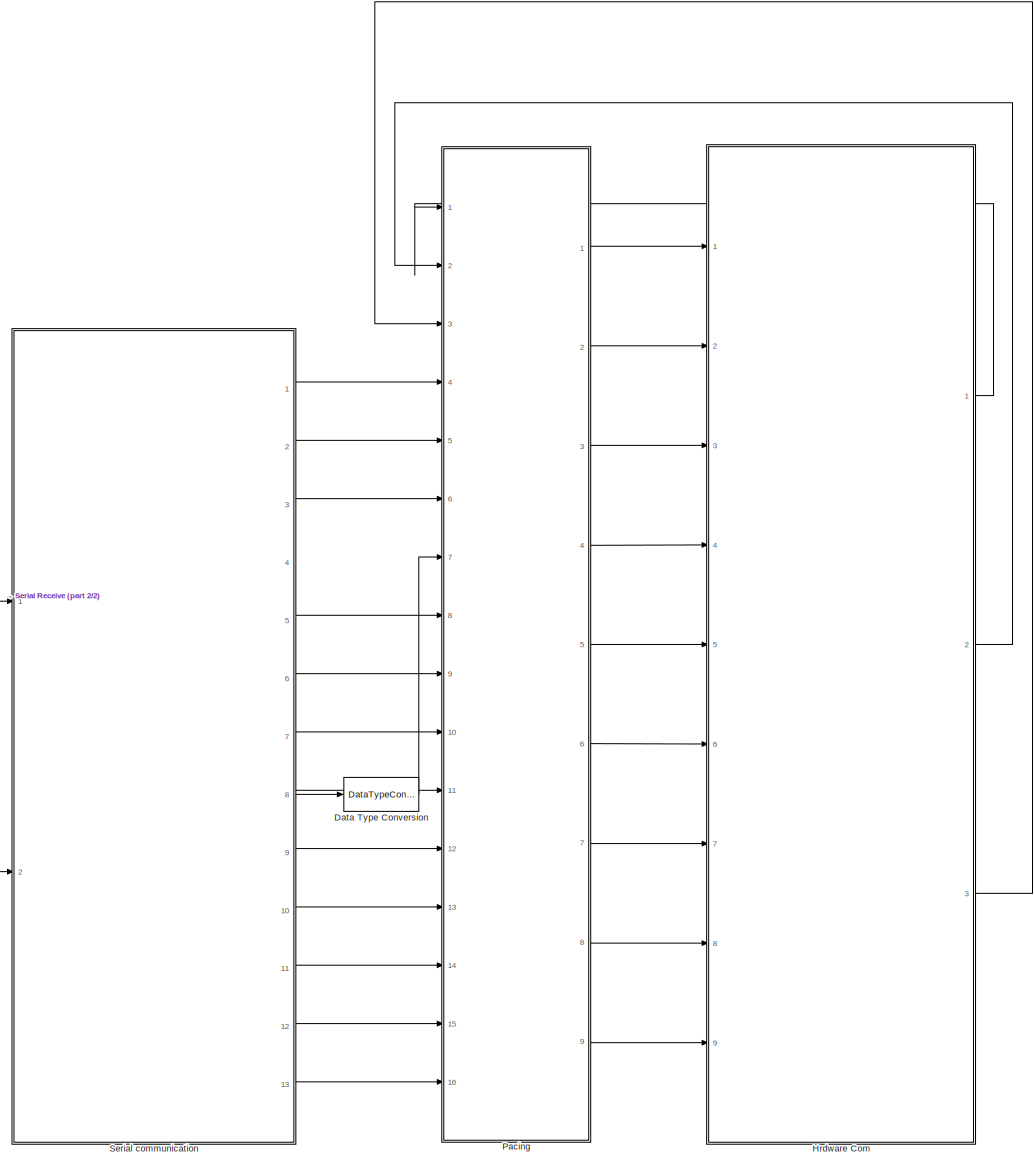
[diagram: root canvas - part 1/2, most of the canvas]
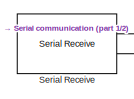
[diagram: root canvas - part 2/2, middle left region]
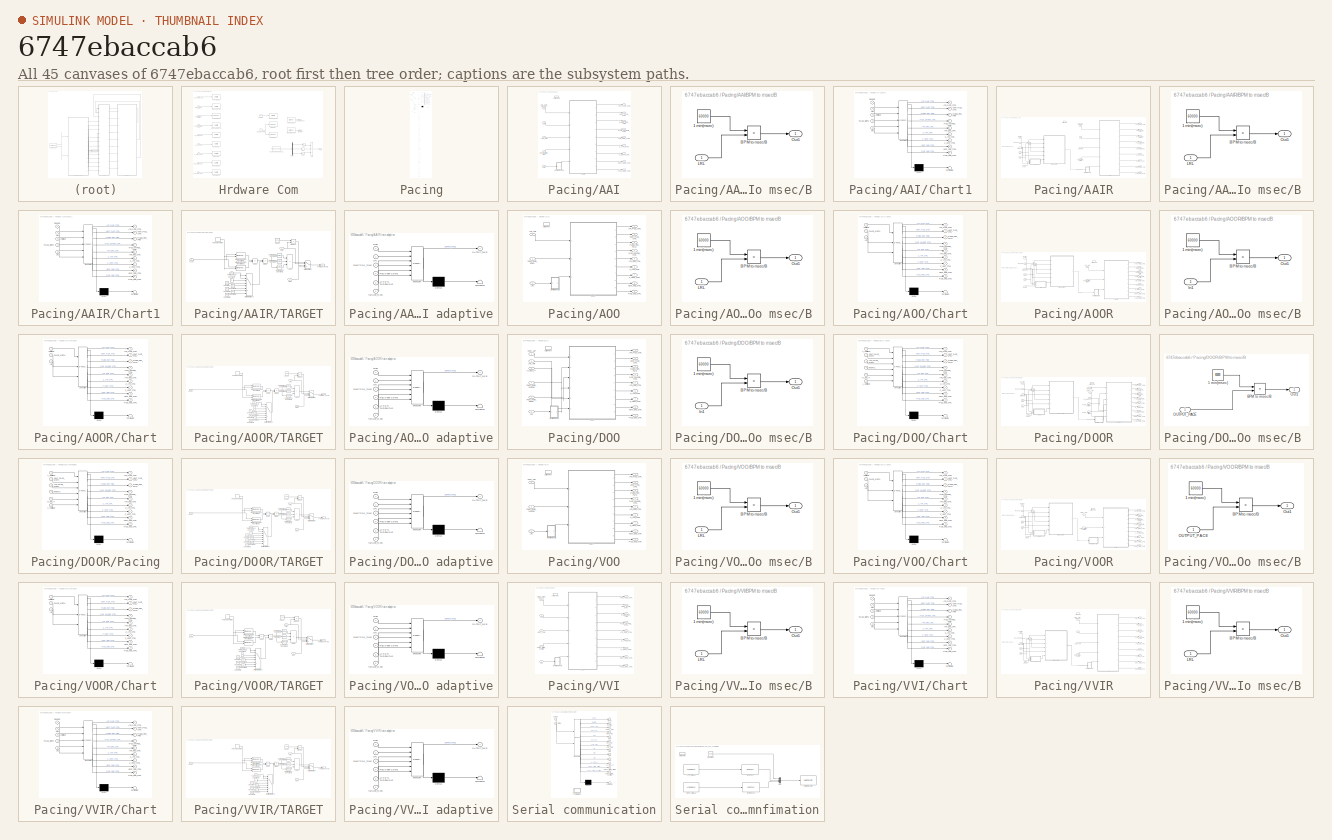
[diagram: thumbnail index - all 45 canvases of the model, root first then tree order]
MODEL slx_6747ebaccab6
KIND model
CONFIG AbsTol = auto
CONFIG EnableMultiTasking = on
CONFIG FixedStep = 0.001
CONFIG MaxStep = auto
CONFIG MinStep = auto
CONFIG RelTol = 1e-3
CONFIG SampleTimeConstraint = Unconstrained
CONFIG Solver = FixedStepAuto
CONFIG SolverName = FixedStepAuto
CONFIG StartTime = 0.0
CONFIG StopTime = inf
WORKSPACE source: mxarray member
WORKSPACE parameter: Simulink.Parameter (value not decoded)
BLOCK [DataTypeConversion] Data Type Conversion
  OutDataTypeStr = double
  RndMeth = Floor
  SaturateOnIntegerOverflow = off
BLOCK [SubSystem] Hrdware Com
  Ports = [9, 3]
  RequestExecContextInheritance = off
BLOCK [Reference] Hrdware Com/ATR CMP DETECT  REF=frdmk64flib/Digital Read
  Ports = [0, 1]
  SourceBlock = frdmk64flib/Digital Read
  SourceProductBaseCode = EC_FRDM_K64F
  SourceType = freedomk64f.DigitalRead
BLOCK [Outport] Hrdware Com/ATR CMP DETECT 
  OutDataTypeStr = boolean
  PortDimensions = 1
BLOCK [Reference] Hrdware Com/ATR GND CTRL   REF=frdmk64flib/Digital Write
  Ports = [1]
  SourceBlock = frdmk64flib/Digital Write
  SourceProductBaseCode = EC_FRDM_K64F
  SourceType = freedomk64f.DigitalWrite
BLOCK [Reference] Hrdware Com/ATR PACE CTRL  REF=frdmk64flib/Digital Write
  Ports = [1]
  SourceBlock = frdmk64flib/Digital Write
  SourceProductBaseCode = EC_FRDM_K64F
  SourceType = freedomk64f.DigitalWrite
BLOCK [Inport] Hrdware Com/ATR_GND_CTRL
  Port = 5
BLOCK [Inport] Hrdware Com/ATR_PACE_CTRL
BLOCK [Abs] Hrdware Com/Abs
  SaturateOnIntegerOverflow = off
BLOCK [Abs] Hrdware Com/Abs1
  SaturateOnIntegerOverflow = off
BLOCK [Abs] Hrdware Com/Abs2
  SaturateOnIntegerOverflow = off
BLOCK [Outport] Hrdware Com/Accel
  OutDataTypeStr = double
  Port = 3
  PortDimensions = 1
BLOCK [Sum] Hrdware Com/Add
  IconShape = rectangular
  Inputs = +++
  Ports = [3, 1]
BLOCK [Constant] Hrdware Com/CMP_REF_PWM
  OutDataTypeStr = double
  Value = 80
BLOCK [Constant] Hrdware Com/Constant
  OutDataTypeStr = boolean
  Value = true
BLOCK [Demux] Hrdware Com/Demux
  Outputs = 3
  Ports = [1, 3]
BLOCK [Reference] Hrdware Com/FRONTEND CTRL  REF=frdmk64flib/Digital Write
  Ports = [1]
  SourceBlock = frdmk64flib/Digital Write
  SourceProductBaseCode = EC_FRDM_K64F
  SourceType = freedomk64f.DigitalWrite
BLOCK [Reference] Hrdware Com/FXOS8700 6-Axes Sensor1  REF=frdmk64flib/FXOS8700 6-Axes Sensor
  Ports = [0, 1]
  SourceBlock = frdmk64flib/FXOS8700 6-Axes Sensor
  SourceProductBaseCode = EC_FRDM_K64F
  SourceType = freedomk64f.fxos8700
BLOCK [Reference] Hrdware Com/PACE CHARGE CTRL  REF=frdmk64flib/Digital Write
  Ports = [1]
  SourceBlock = frdmk64flib/Digital Write
  SourceProductBaseCode = EC_FRDM_K64F
  SourceType = freedomk64f.DigitalWrite
BLOCK [Reference] Hrdware Com/PACE GND CTRL  REF=frdmk64flib/Digital Write
  Ports = [1]
  SourceBlock = frdmk64flib/Digital Write
  SourceProductBaseCode = EC_FRDM_K64F
  SourceType = freedomk64f.DigitalWrite
BLOCK [Inport] Hrdware Com/PACE_CHARGE_CTRL
  Port = 4
BLOCK [Inport] Hrdware Com/PACE_GND_CTRL
  Port = 9
BLOCK [Reference] Hrdware Com/PACING REF PWM  REF=frdmk64flib/PWM Output
  Ports = [1]
  SourceBlock = frdmk64flib/PWM Output
  SourceProductBaseCode = EC_FRDM_K64F
  SourceType = freedomk64f.PWMOutput
BLOCK [Inport] Hrdware Com/PACING_REF_PWM
  Port = 3
BLOCK [Reference] Hrdware Com/PWM Output  REF=frdmk64flib/PWM Output
  Ports = [1]
  SourceBlock = frdmk64flib/PWM Output
  SourceProductBaseCode = EC_FRDM_K64F
  SourceType = freedomk64f.PWMOutput
BLOCK [Reference] Hrdware Com/PWM Output1  REF=frdmk64flib/PWM Output
  Ports = [1]
  SourceBlock = frdmk64flib/PWM Output
  SourceProductBaseCode = EC_FRDM_K64F
  SourceType = freedomk64f.PWMOutput
BLOCK [Reference] Hrdware Com/VENT CMP DETECT  REF=frdmk64flib/Digital Read
  Ports = [0, 1]
  SourceBlock = frdmk64flib/Digital Read
  SourceProductBaseCode = EC_FRDM_K64F
  SourceType = freedomk64f.DigitalRead
BLOCK [Outport] Hrdware Com/VENT CMP DETECT 
  OutDataTypeStr = boolean
  Port = 2
  PortDimensions = 1
BLOCK [Reference] Hrdware Com/VENT GND CTRL  REF=frdmk64flib/Digital Write
  Ports = [1]
  SourceBlock = frdmk64flib/Digital Write
  SourceProductBaseCode = EC_FRDM_K64F
  SourceType = freedomk64f.DigitalWrite
BLOCK [Reference] Hrdware Com/VENT PACE CTRL  REF=frdmk64flib/Digital Write
  Ports = [1]
  SourceBlock = frdmk64flib/Digital Write
  SourceProductBaseCode = EC_FRDM_K64F
  SourceType = freedomk64f.DigitalWrite
BLOCK [Inport] Hrdware Com/VENT_GND_CTRL
  Port = 8
BLOCK [Inport] Hrdware Com/VENT_PACE_CTRL
  Port = 2
BLOCK [Reference] Hrdware Com/Z ATR CTRL   REF=frdmk64flib/Digital Write
  Ports = [1]
  SourceBlock = frdmk64flib/Digital Write
  SourceProductBaseCode = EC_FRDM_K64F
  SourceType = freedomk64f.DigitalWrite
BLOCK [Reference] Hrdware Com/Z VENT CTRL   REF=frdmk64flib/Digital Write
  Ports = [1]
  SourceBlock = frdmk64flib/Digital Write
  SourceProductBaseCode = EC_FRDM_K64F
  SourceType = freedomk64f.DigitalWrite
BLOCK [Inport] Hrdware Com/Z_ATR_CTRL 
  Port = 6
BLOCK [Inport] Hrdware Com/Z_VENT_CTRL 
  Port = 7
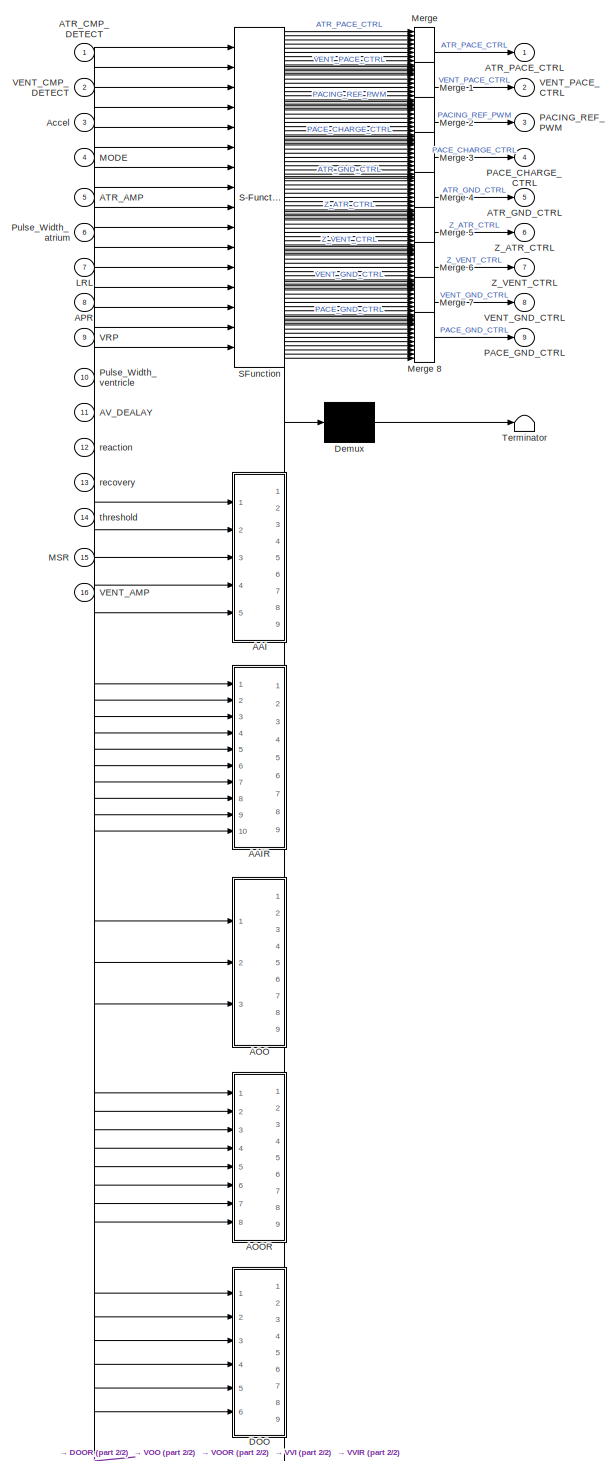
[diagram: Pacing - part 1/2, full width, top band]
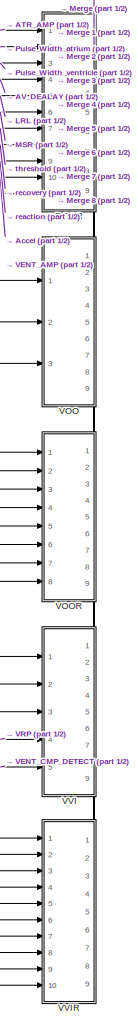
[diagram: Pacing - part 2/2, bottom center region]
BLOCK [SubSystem] Pacing
  ErrorFcn = Stateflow.Translate.translate
  PermitHierarchicalResolution = ExplicitOnly
  PortSchema = {"entries":[{"content":{"sides":[{"content":{"connectorIds":["In1","In2","In3","In4","In5","In6","In8","In15","In9","In16","In7","In10","In11","In12","In13","In14"]},"type":"ConnectorPlacement.EquallySpacedRectSide","uuid":"b899f434-ac53-4776-90ad-1e47a9a70434"},{"content":{"connectorIds":["Out1","Out2","Out3","Out4","Out5","Out6","Out7","Out8","Out9"],"side":"RIGHT"},"type":"ConnectorPlacement.Eq...<+395ch>
  Ports = [16, 9]
  RequestExecContextInheritance = off
  SFBlockType = Chart
  TreatAsAtomicUnit = on
BLOCK [Demux] Pacing/ Demux 
  Outputs = 1
  Ports = [1, 1]
BLOCK [Merge] Pacing/ Merge 
  Inputs = 11
  Ports = [11, 1]
BLOCK [Merge] Pacing/ Merge 1
  Inputs = 11
  Ports = [11, 1]
BLOCK [Merge] Pacing/ Merge 2
  Inputs = 11
  Ports = [11, 1]
BLOCK [Merge] Pacing/ Merge 3
  Inputs = 11
  Ports = [11, 1]
BLOCK [Merge] Pacing/ Merge 4
  Inputs = 11
  Ports = [11, 1]
BLOCK [Merge] Pacing/ Merge 5
  Inputs = 11
  Ports = [11, 1]
BLOCK [Merge] Pacing/ Merge 6
  Inputs = 11
  Ports = [11, 1]
BLOCK [Merge] Pacing/ Merge 7
  Inputs = 11
  Ports = [11, 1]
BLOCK [Merge] Pacing/ Merge 8
  Inputs = 11
  Ports = [11, 1]
BLOCK [S-Function] Pacing/ SFunction 
  EnableBusSupport = on
  FunctionName = sf_sfun
  PortCounts = [16 10]
  Ports = [16, 10]
  SFcnIsStateOwnerBlock = off
  SFunctionDeploymentMode = off
  Tag = Stateflow S-Function 3
BLOCK [Terminator] Pacing/ Terminator 
BLOCK [SubSystem] Pacing/AAI
  Ports = [5, 9, 0, 0, 0, 0, 0, 1]
  PreDeleteFcn = Stateflow.SLINSF.SimulinkMan.removePreDeleteFcn
  RequestExecContextInheritance = off
  UndoDeleteFcn = Stateflow.SLINSF.SimulinkMan.restorePreDeleteFcn
BLOCK [Inport] Pacing/AAI/APR
  Port = 4
BLOCK [Inport] Pacing/AAI/ATR_AMP
BLOCK [Inport] Pacing/AAI/ATR_CMP_DETECT
  Port = 5
BLOCK [Outport] Pacing/AAI/ATR_GND_CTRL
  Port = 5
BLOCK [Outport] Pacing/AAI/ATR_PACE_CTRL
BLOCK [ActionPort] Pacing/AAI/Action Port
  CopyFcn = Stateflow.SLINSF.SimulinkMan.removeBlockPreDeleteFcn
  PreDeleteFcn = Stateflow.SLINSF.SimulinkMan.unsafePredeleteFcn
BLOCK [SubSystem] Pacing/AAI/BPM to msec//B 
  Ports = [1, 1]
  RequestExecContextInheritance = off
BLOCK [Constant] Pacing/AAI/BPM to msec//B /1 min(msec)
  OutDataTypeStr = double
  Value = 60000
BLOCK [Product] Pacing/AAI/BPM to msec//B /BPM to msec//B 
  Inputs = */
  OutDataTypeStr = uint16
  Ports = [2, 1]
  RndMeth = Nearest
BLOCK [Inport] Pacing/AAI/BPM to msec//B /LRL
BLOCK [Outport] Pacing/AAI/BPM to msec//B /Out1
BLOCK [SubSystem] Pacing/AAI/Chart1
  ErrorFcn = Stateflow.Translate.translate
  PermitHierarchicalResolution = ExplicitOnly
  Ports = [5, 9]
  RequestExecContextInheritance = off
  SFBlockType = Chart
  TreatAsAtomicUnit = on
BLOCK [Demux] Pacing/AAI/Chart1/ Demux 
  Outputs = 1
  Ports = [1, 1]
BLOCK [S-Function] Pacing/AAI/Chart1/ SFunction 
  EnableBusSupport = off
  FunctionName = sf_sfun
  PortCounts = [5 10]
  Ports = [5, 10]
  SFcnIsStateOwnerBlock = off
  SFunctionDeploymentMode = off
  Tag = Stateflow S-Function 12
BLOCK [Terminator] Pacing/AAI/Chart1/ Terminator 
BLOCK [Inport] Pacing/AAI/Chart1/ARP
  Port = 2
BLOCK [Outport] Pacing/AAI/Chart1/ATR_GND_CTRL
  Port = 5
BLOCK [Outport] Pacing/AAI/Chart1/ATR_PACE_CTRL
BLOCK [Inport] Pacing/AAI/Chart1/Amplitude
  Port = 3
BLOCK [Inport] Pacing/AAI/Chart1/LRL
  Port = 5
BLOCK [Outport] Pacing/AAI/Chart1/PACE_CHARGE_CTRL
  Port = 4
BLOCK [Outport] Pacing/AAI/Chart1/PACE_GND_CTRL
  Port = 9
BLOCK [Outport] Pacing/AAI/Chart1/PACING_REF_PWM
  Port = 3
BLOCK [Inport] Pacing/AAI/Chart1/PULSE_WIDTH
  Port = 4
BLOCK [Inport] Pacing/AAI/Chart1/SENSED
BLOCK [Outport] Pacing/AAI/Chart1/VENT_GND_CTRL
  Port = 8
BLOCK [Outport] Pacing/AAI/Chart1/VENT_PACE_CTRL
  Port = 2
BLOCK [Outport] Pacing/AAI/Chart1/Z_ATR_CTRL
  Port = 6
BLOCK [Outport] Pacing/AAI/Chart1/Z_VENT_CTRL
  Port = 7
BLOCK [Inport] Pacing/AAI/LRL
  Port = 3
BLOCK [Outport] Pacing/AAI/PACE_CHARGE_CTRL
  Port = 4
BLOCK [Outport] Pacing/AAI/PACE_GND_CTRL
  Port = 9
BLOCK [Outport] Pacing/AAI/PACING_REF_PWM
  Port = 3
BLOCK [Inport] Pacing/AAI/Pulse_Width_atrium
  Port = 2
BLOCK [Outport] Pacing/AAI/VENT_GND_CTRL
  Port = 8
BLOCK [Outport] Pacing/AAI/VENT_PACE_CTRL
  Port = 2
BLOCK [Outport] Pacing/AAI/Z_ATR_CTRL
  Port = 6
BLOCK [Outport] Pacing/AAI/Z_VENT_CTRL
  Port = 7
BLOCK [SubSystem] Pacing/AAIR
  Ports = [10, 9, 0, 0, 0, 0, 0, 1]
  PreDeleteFcn = Stateflow.SLINSF.SimulinkMan.removePreDeleteFcn
  RequestExecContextInheritance = off
  UndoDeleteFcn = Stateflow.SLINSF.SimulinkMan.restorePreDeleteFcn
BLOCK [Inport] Pacing/AAIR/APR
  Port = 3
BLOCK [Inport] Pacing/AAIR/ATR_AMP
BLOCK [Inport] Pacing/AAIR/ATR_CMP_DETECT
  Port = 4
BLOCK [Outport] Pacing/AAIR/ATR_GND_CTRL
  Port = 5
BLOCK [Outport] Pacing/AAIR/ATR_PACE_CTRL
BLOCK [Inport] Pacing/AAIR/Accel
  Port = 10
BLOCK [ActionPort] Pacing/AAIR/Action Port
  CopyFcn = Stateflow.SLINSF.SimulinkMan.removeBlockPreDeleteFcn
  PreDeleteFcn = Stateflow.SLINSF.SimulinkMan.unsafePredeleteFcn
BLOCK [SubSystem] Pacing/AAIR/BPM to msec//B 
  Ports = [1, 1]
  RequestExecContextInheritance = off
BLOCK [Constant] Pacing/AAIR/BPM to msec//B /1 min(msec)
  OutDataTypeStr = double
  Value = 60000
BLOCK [Product] Pacing/AAIR/BPM to msec//B /BPM to msec//B 
  Inputs = */
  OutDataTypeStr = uint16
  Ports = [2, 1]
  RndMeth = Nearest
BLOCK [Inport] Pacing/AAIR/BPM to msec//B /LRL
BLOCK [Outport] Pacing/AAIR/BPM to msec//B /Out1
BLOCK [SubSystem] Pacing/AAIR/Chart1
  ErrorFcn = Stateflow.Translate.translate
  PermitHierarchicalResolution = ExplicitOnly
  Ports = [5, 9]
  RequestExecContextInheritance = off
  SFBlockType = Chart
  TreatAsAtomicUnit = on
BLOCK [Demux] Pacing/AAIR/Chart1/ Demux 
  Outputs = 1
  Ports = [1, 1]
BLOCK [S-Function] Pacing/AAIR/Chart1/ SFunction 
  EnableBusSupport = off
  FunctionName = sf_sfun
  PortCounts = [5 10]
  Ports = [5, 10]
  SFcnIsStateOwnerBlock = off
  SFunctionDeploymentMode = off
  Tag = Stateflow S-Function 9
BLOCK [Terminator] Pacing/AAIR/Chart1/ Terminator 
BLOCK [Inport] Pacing/AAIR/Chart1/ARP
  Port = 2
BLOCK [Outport] Pacing/AAIR/Chart1/ATR_GND_CTRL
  Port = 5
BLOCK [Outport] Pacing/AAIR/Chart1/ATR_PACE_CTRL
BLOCK [Inport] Pacing/AAIR/Chart1/Amplitude
  Port = 3
BLOCK [Inport] Pacing/AAIR/Chart1/LRL
  Port = 5
BLOCK [Outport] Pacing/AAIR/Chart1/PACE_CHARGE_CTRL
  Port = 4
BLOCK [Outport] Pacing/AAIR/Chart1/PACE_GND_CTRL
  Port = 9
BLOCK [Outport] Pacing/AAIR/Chart1/PACING_REF_PWM
  Port = 3
BLOCK [Inport] Pacing/AAIR/Chart1/PULSE_WIDTH
  Port = 4
BLOCK [Inport] Pacing/AAIR/Chart1/SENSED
BLOCK [Outport] Pacing/AAIR/Chart1/VENT_GND_CTRL
  Port = 8
BLOCK [Outport] Pacing/AAIR/Chart1/VENT_PACE_CTRL
  Port = 2
BLOCK [Outport] Pacing/AAIR/Chart1/Z_ATR_CTRL
  Port = 6
BLOCK [Outport] Pacing/AAIR/Chart1/Z_VENT_CTRL
  Port = 7
BLOCK [Gain] Pacing/AAIR/Gain
  Gain = 60
BLOCK [Inport] Pacing/AAIR/LRL
  Port = 5
BLOCK [Inport] Pacing/AAIR/MSR
  Port = 6
BLOCK [Outport] Pacing/AAIR/PACE_CHARGE_CTRL
  Port = 4
BLOCK [Outport] Pacing/AAIR/PACE_GND_CTRL
  Port = 9
BLOCK [Outport] Pacing/AAIR/PACING_REF_PWM
  Port = 3
BLOCK [Inport] Pacing/AAIR/Pulse_Width_atrium
  Port = 2
BLOCK [SubSystem] Pacing/AAIR/TARGET
  Ports = [4, 1]
  RequestExecContextInheritance = off
BLOCK [Inport] Pacing/AAIR/TARGET/Accel
  Port = 3
BLOCK [Sum] Pacing/AAIR/TARGET/Add1
  IconShape = rectangular
  Inputs = +-
  Ports = [2, 1]
BLOCK [Sum] Pacing/AAIR/TARGET/Add2
  IconShape = rectangular
  Inputs = +++
  Ports = [3, 1]
BLOCK [Reference] Pacing/AAIR/TARGET/Compare To Constant  REF=simulink/Logic and Bit
Operations/Compare
To Constant
  Ports = [1, 1]
  SourceBlock = simulink/Logic and Bit\nOperations/Compare\nTo Constant
  SourceProductBaseCode = SL
  SourceType = Compare To Constant
BLOCK [Reference] Pacing/AAIR/TARGET/Compare To Constant1  REF=simulink/Logic and Bit
Operations/Compare
To Constant
  Ports = [1, 1]
  SourceBlock = simulink/Logic and Bit\nOperations/Compare\nTo Constant
  SourceProductBaseCode = SL
  SourceType = Compare To Constant
BLOCK [Reference] Pacing/AAIR/TARGET/Compare To Constant2  REF=simulink/Logic and Bit
Operations/Compare
To Constant
  Ports = [1, 1]
  SourceBlock = simulink/Logic and Bit\nOperations/Compare\nTo Constant
  SourceProductBaseCode = SL
  SourceType = Compare To Constant
BLOCK [Constant] Pacing/AAIR/TARGET/Constant
  OutDataTypeStr = single
  Value = 16
BLOCK [Constant] Pacing/AAIR/TARGET/Constant1
  OutDataTypeStr = single
  Value = 8
BLOCK [Constant] Pacing/AAIR/TARGET/Constant2
  OutDataTypeStr = single
  Value = 25
BLOCK [Constant] Pacing/AAIR/TARGET/Constant3
  OutDataTypeStr = single
  Value = 32
BLOCK [Constant] Pacing/AAIR/TARGET/Constant4
  OutDataTypeStr = single
  Value = 40
BLOCK [Constant] Pacing/AAIR/TARGET/Constant5
  OutDataTypeStr = single
  Value = 50
BLOCK [Product] Pacing/AAIR/TARGET/Divide
  Inputs = */
  Ports = [2, 1]
BLOCK [Inport] Pacing/AAIR/TARGET/LRL
  Port = 2
BLOCK [Inport] Pacing/AAIR/TARGET/MSR
BLOCK [Reference] Pacing/AAIR/TARGET/MinMax Running Resettable  REF=simulink/Math
Operations/MinMax
Running
Resettable
  Ports = [2, 1]
  SourceBlock = simulink/Math\nOperations/MinMax\nRunning\nResettable
  SourceProductBaseCode = SL
  SourceType = MinMax Running Resettable
BLOCK [Reference] Pacing/AAIR/TARGET/MinMax Running Resettable1  REF=simulink/Math
Operations/MinMax
Running
Resettable
  Ports = [2, 1]
  SourceBlock = simulink/Math\nOperations/MinMax\nRunning\nResettable
  SourceProductBaseCode = SL
  SourceType = MinMax Running Resettable
BLOCK [MultiPortSwitch] Pacing/AAIR/TARGET/Multiport Switch
  InputSameDT = off
  OutDataTypeStr = double
  Ports = [4, 1]
  SaturateOnIntegerOverflow = off
BLOCK [MultiPortSwitch] Pacing/AAIR/TARGET/Multiport Switch1
  InputSameDT = off
  Inputs = 7
  Ports = [8, 1]
  SaturateOnIntegerOverflow = off
BLOCK [Product] Pacing/AAIR/TARGET/Product
  Ports = [2, 1]
BLOCK [DiscretePulseGenerator] Pacing/AAIR/TARGET/Pulse Generator
  Ports = [0, 1]
  PulseType = Time based
  PulseWidth = 2.5
BLOCK [Outport] Pacing/AAIR/TARGET/TARGET_RATE
BLOCK [Inport] Pacing/AAIR/TARGET/THRESHOLD
  Port = 4
BLOCK [Constant] Pacing/AAIR/TARGET/const
  Value = 1.75
BLOCK [Outport] Pacing/AAIR/VENT_GND_CTRL
  Port = 8
BLOCK [Outport] Pacing/AAIR/VENT_PACE_CTRL
  Port = 2
BLOCK [Outport] Pacing/AAIR/Z_ATR_CTRL
  Port = 6
BLOCK [Outport] Pacing/AAIR/Z_VENT_CTRL
  Port = 7
BLOCK [SubSystem] Pacing/AAIR/rate adaptive
  ErrorFcn = Stateflow.Translate.translate
  PermitHierarchicalResolution = ExplicitOnly
  PortSchema = {"entries":[{"content":{"sides":[{"content":{"connectorIds":["In3","In4","In5","In1","In2","In6"]},"type":"ConnectorPlacement.EquallySpacedRectSide","uuid":"d3aa46b7-da68-4733-bd03-102d604fce17"},{"content":{"connectorIds":["Out1"],"side":"RIGHT"},"type":"ConnectorPlacement.EquallySpacedRectSide","uuid":"afbb636e-6b76-41fa-bb75-ca0d3f63044e"},{"content":{"connectorIds":[],"side":"TOP"},"type":"Con...<+270ch>  <repeated x5 — deduplicated; at blocks: rate adaptive>
  Ports = [6, 1]
  RequestExecContextInheritance = off
  SFBlockType = Chart
  TreatAsAtomicUnit = on
BLOCK [Demux] Pacing/AAIR/rate adaptive/ Demux 
  Outputs = 1
  Ports = [1, 1]
BLOCK [S-Function] Pacing/AAIR/rate adaptive/ SFunction 
  EnableBusSupport = off
  FunctionName = sf_sfun
  PortCounts = [6 2]
  Ports = [6, 2]
  SFcnIsStateOwnerBlock = off
  SFunctionDeploymentMode = off
  Tag = Stateflow S-Function 14
BLOCK [Terminator] Pacing/AAIR/rate adaptive/ Terminator 
BLOCK [Inport] Pacing/AAIR/rate adaptive/ACTIVITY_THRESHOLD
  Port = 5
BLOCK [Inport] Pacing/AAIR/rate adaptive/LRL
  Port = 2
BLOCK [Inport] Pacing/AAIR/rate adaptive/MSR
BLOCK [Outport] Pacing/AAIR/rate adaptive/OUTPUT_PACE
BLOCK [Inport] Pacing/AAIR/rate adaptive/REACTION_TIME
  Port = 3
BLOCK [Inport] Pacing/AAIR/rate adaptive/RECOVERY_TIME
  Port = 4
BLOCK [Inport] Pacing/AAIR/rate adaptive/TARGET_RATE
  Port = 6
BLOCK [Inport] Pacing/AAIR/reaction
  Port = 9
BLOCK [Inport] Pacing/AAIR/recovery
  Port = 8
BLOCK [Inport] Pacing/AAIR/threshold
  Port = 7
BLOCK [SubSystem] Pacing/AOO
  Ports = [3, 9, 0, 0, 0, 0, 0, 1]
  PreDeleteFcn = Stateflow.SLINSF.SimulinkMan.removePreDeleteFcn
  RequestExecContextInheritance = off
  UndoDeleteFcn = Stateflow.SLINSF.SimulinkMan.restorePreDeleteFcn
BLOCK [Inport] Pacing/AOO/ATR_AMP
BLOCK [Outport] Pacing/AOO/ATR_GND_CTRL
  Port = 5
BLOCK [Outport] Pacing/AOO/ATR_PACE_CTRL
BLOCK [ActionPort] Pacing/AOO/Action Port
  CopyFcn = Stateflow.SLINSF.SimulinkMan.removeBlockPreDeleteFcn
  PreDeleteFcn = Stateflow.SLINSF.SimulinkMan.unsafePredeleteFcn
BLOCK [SubSystem] Pacing/AOO/BPM to msec//B 
  Ports = [1, 1]
  RequestExecContextInheritance = off
BLOCK [Constant] Pacing/AOO/BPM to msec//B /1 min(msec)
  OutDataTypeStr = double
  Value = 60000
BLOCK [Product] Pacing/AOO/BPM to msec//B /BPM to msec//B 
  Inputs = */
  OutDataTypeStr = uint16
  Ports = [2, 1]
  RndMeth = Nearest
BLOCK [Inport] Pacing/AOO/BPM to msec//B /LRL
BLOCK [Outport] Pacing/AOO/BPM to msec//B /Out1
BLOCK [SubSystem] Pacing/AOO/Chart
  ErrorFcn = Stateflow.Translate.translate
  PermitHierarchicalResolution = ExplicitOnly
  Ports = [3, 9]
  RequestExecContextInheritance = off
  SFBlockType = Chart
  TreatAsAtomicUnit = on
BLOCK [Demux] Pacing/AOO/Chart/ Demux 
  Outputs = 1
  Ports = [1, 1]
BLOCK [S-Function] Pacing/AOO/Chart/ SFunction 
  EnableBusSupport = off
  FunctionName = sf_sfun
  PortCounts = [3 10]
  Ports = [3, 10]
  SFcnIsStateOwnerBlock = off
  SFunctionDeploymentMode = off
  Tag = Stateflow S-Function 1
BLOCK [Terminator] Pacing/AOO/Chart/ Terminator 
BLOCK [Outport] Pacing/AOO/Chart/ATR_GND_CTRL
  Port = 5
BLOCK [Outport] Pacing/AOO/Chart/ATR_PACE_CTRL
BLOCK [Inport] Pacing/AOO/Chart/Amplitude
BLOCK [Inport] Pacing/AOO/Chart/LRL
  Port = 3
BLOCK [Outport] Pacing/AOO/Chart/PACE_CHARGE_CTRL
  Port = 4
BLOCK [Outport] Pacing/AOO/Chart/PACE_GND_CTRL
  Port = 9
BLOCK [Outport] Pacing/AOO/Chart/PACING_REF_PWM
  Port = 3
BLOCK [Inport] Pacing/AOO/Chart/PULSE_WIDTH
  Port = 2
BLOCK [Outport] Pacing/AOO/Chart/VENT_GND_CTRL
  Port = 8
BLOCK [Outport] Pacing/AOO/Chart/VENT_PACE_CTRL
  Port = 2
BLOCK [Outport] Pacing/AOO/Chart/Z_ATR_CTRL
  Port = 6
BLOCK [Outport] Pacing/AOO/Chart/Z_VENT_CTRL
  Port = 7
BLOCK [Inport] Pacing/AOO/LRL
  Port = 3
BLOCK [Outport] Pacing/AOO/PACE_CHARGE_CTRL
  Port = 4
BLOCK [Outport] Pacing/AOO/PACE_GND_CTRL
  Port = 9
BLOCK [Outport] Pacing/AOO/PACING_REF_PWM
  Port = 3
BLOCK [Inport] Pacing/AOO/Pulse_Width_atrium
  Port = 2
BLOCK [Outport] Pacing/AOO/VENT_GND_CTRL
  Port = 8
BLOCK [Outport] Pacing/AOO/VENT_PACE_CTRL
  Port = 2
BLOCK [Outport] Pacing/AOO/Z_ATR_CTRL
  Port = 6
BLOCK [Outport] Pacing/AOO/Z_VENT_CTRL
  Port = 7
BLOCK [SubSystem] Pacing/AOOR
  Ports = [8, 9, 0, 0, 0, 0, 0, 1]
  PreDeleteFcn = Stateflow.SLINSF.SimulinkMan.removePreDeleteFcn
  RequestExecContextInheritance = off
  UndoDeleteFcn = Stateflow.SLINSF.SimulinkMan.restorePreDeleteFcn
BLOCK [Inport] Pacing/AOOR/ATR_AMP
BLOCK [Outport] Pacing/AOOR/ATR_GND_CTRL
  Port = 5
BLOCK [Outport] Pacing/AOOR/ATR_PACE_CTRL
BLOCK [Inport] Pacing/AOOR/Accel
  Port = 8
BLOCK [ActionPort] Pacing/AOOR/Action Port
  CopyFcn = Stateflow.SLINSF.SimulinkMan.removeBlockPreDeleteFcn
  PreDeleteFcn = Stateflow.SLINSF.SimulinkMan.unsafePredeleteFcn
BLOCK [SubSystem] Pacing/AOOR/BPM to msec//B 
  Ports = [1, 1]
  RequestExecContextInheritance = off
BLOCK [Constant] Pacing/AOOR/BPM to msec//B /1 min(msec)
  OutDataTypeStr = double
  Value = 60000
BLOCK [Product] Pacing/AOOR/BPM to msec//B /BPM to msec//B 
  Inputs = */
  OutDataTypeStr = uint16
  Ports = [2, 1]
  RndMeth = Nearest
BLOCK [Inport] Pacing/AOOR/BPM to msec//B /In1
BLOCK [Outport] Pacing/AOOR/BPM to msec//B /Out1
BLOCK [SubSystem] Pacing/AOOR/Chart
  ErrorFcn = Stateflow.Translate.translate
  PermitHierarchicalResolution = ExplicitOnly
  Ports = [3, 9]
  RequestExecContextInheritance = off
  SFBlockType = Chart
  TreatAsAtomicUnit = on
BLOCK [Demux] Pacing/AOOR/Chart/ Demux 
  Outputs = 1
  Ports = [1, 1]
BLOCK [S-Function] Pacing/AOOR/Chart/ SFunction 
  EnableBusSupport = off
  FunctionName = sf_sfun
  PortCounts = [3 10]
  Ports = [3, 10]
  SFcnIsStateOwnerBlock = off
  SFunctionDeploymentMode = off
  Tag = Stateflow S-Function 6
BLOCK [Terminator] Pacing/AOOR/Chart/ Terminator 
BLOCK [Outport] Pacing/AOOR/Chart/ATR_GND_CTRL
  Port = 5
BLOCK [Outport] Pacing/AOOR/Chart/ATR_PACE_CTRL
BLOCK [Inport] Pacing/AOOR/Chart/Amplitude
BLOCK [Inport] Pacing/AOOR/Chart/LRL
  Port = 3
BLOCK [Outport] Pacing/AOOR/Chart/PACE_CHARGE_CTRL
  Port = 4
BLOCK [Outport] Pacing/AOOR/Chart/PACE_GND_CTRL
  Port = 9
BLOCK [Outport] Pacing/AOOR/Chart/PACING_REF_PWM
  Port = 3
BLOCK [Inport] Pacing/AOOR/Chart/PULSE_WIDTH
  Port = 2
BLOCK [Outport] Pacing/AOOR/Chart/VENT_GND_CTRL
  Port = 8
BLOCK [Outport] Pacing/AOOR/Chart/VENT_PACE_CTRL
  Port = 2
BLOCK [Outport] Pacing/AOOR/Chart/Z_ATR_CTRL
  Port = 6
BLOCK [Outport] Pacing/AOOR/Chart/Z_VENT_CTRL
  Port = 7
BLOCK [Gain] Pacing/AOOR/Gain
  Gain = 60
BLOCK [Inport] Pacing/AOOR/LRL
  Port = 3
BLOCK [Inport] Pacing/AOOR/MSR
  Port = 4
BLOCK [Outport] Pacing/AOOR/PACE_CHARGE_CTRL
  Port = 4
BLOCK [Outport] Pacing/AOOR/PACE_GND_CTRL
  Port = 9
BLOCK [Outport] Pacing/AOOR/PACING_REF_PWM
  Port = 3
BLOCK [Inport] Pacing/AOOR/Pulse_Width_atrium
  Port = 2
BLOCK [SubSystem] Pacing/AOOR/TARGET
  Ports = [4, 1]
  RequestExecContextInheritance = off
BLOCK [Inport] Pacing/AOOR/TARGET/Accel
  Port = 4
BLOCK [Sum] Pacing/AOOR/TARGET/Add1
  IconShape = rectangular
  Inputs = +-
  Ports = [2, 1]
BLOCK [Sum] Pacing/AOOR/TARGET/Add2
  IconShape = rectangular
  Inputs = +++
  Ports = [3, 1]
BLOCK [Reference] Pacing/AOOR/TARGET/Compare To Constant  REF=simulink/Logic and Bit
Operations/Compare
To Constant
  Ports = [1, 1]
  SourceBlock = simulink/Logic and Bit\nOperations/Compare\nTo Constant
  SourceProductBaseCode = SL
  SourceType = Compare To Constant
BLOCK [Reference] Pacing/AOOR/TARGET/Compare To Constant1  REF=simulink/Logic and Bit
Operations/Compare
To Constant
  Ports = [1, 1]
  SourceBlock = simulink/Logic and Bit\nOperations/Compare\nTo Constant
  SourceProductBaseCode = SL
  SourceType = Compare To Constant
BLOCK [Reference] Pacing/AOOR/TARGET/Compare To Constant2  REF=simulink/Logic and Bit
Operations/Compare
To Constant
  Ports = [1, 1]
  SourceBlock = simulink/Logic and Bit\nOperations/Compare\nTo Constant
  SourceProductBaseCode = SL
  SourceType = Compare To Constant
BLOCK [Constant] Pacing/AOOR/TARGET/Constant
  OutDataTypeStr = single
  Value = 16
BLOCK [Constant] Pacing/AOOR/TARGET/Constant1
  OutDataTypeStr = single
  Value = 8
BLOCK [Constant] Pacing/AOOR/TARGET/Constant2
  OutDataTypeStr = single
  Value = 25
BLOCK [Constant] Pacing/AOOR/TARGET/Constant3
  OutDataTypeStr = single
  Value = 32
BLOCK [Constant] Pacing/AOOR/TARGET/Constant4
  OutDataTypeStr = single
  Value = 40
BLOCK [Constant] Pacing/AOOR/TARGET/Constant5
  OutDataTypeStr = single
  Value = 50
BLOCK [Product] Pacing/AOOR/TARGET/Divide
  Inputs = */
  Ports = [2, 1]
BLOCK [Inport] Pacing/AOOR/TARGET/LRL
  Port = 2
BLOCK [Inport] Pacing/AOOR/TARGET/MSR
BLOCK [Reference] Pacing/AOOR/TARGET/MinMax Running Resettable  REF=simulink/Math
Operations/MinMax
Running
Resettable
  Ports = [2, 1]
  SourceBlock = simulink/Math\nOperations/MinMax\nRunning\nResettable
  SourceProductBaseCode = SL
  SourceType = MinMax Running Resettable
BLOCK [Reference] Pacing/AOOR/TARGET/MinMax Running Resettable1  REF=simulink/Math
Operations/MinMax
Running
Resettable
  Ports = [2, 1]
  SourceBlock = simulink/Math\nOperations/MinMax\nRunning\nResettable
  SourceProductBaseCode = SL
  SourceType = MinMax Running Resettable
BLOCK [MultiPortSwitch] Pacing/AOOR/TARGET/Multiport Switch
  InputSameDT = off
  OutDataTypeStr = double
  Ports = [4, 1]
  SaturateOnIntegerOverflow = off
BLOCK [MultiPortSwitch] Pacing/AOOR/TARGET/Multiport Switch1
  InputSameDT = off
  Inputs = 7
  Ports = [8, 1]
  SaturateOnIntegerOverflow = off
BLOCK [Product] Pacing/AOOR/TARGET/Product
  Ports = [2, 1]
BLOCK [DiscretePulseGenerator] Pacing/AOOR/TARGET/Pulse Generator
  Ports = [0, 1]
  PulseType = Time based
  PulseWidth = 2.5
BLOCK [Outport] Pacing/AOOR/TARGET/TARGET_RATE
BLOCK [Inport] Pacing/AOOR/TARGET/THRESHOLD
  Port = 3
BLOCK [Constant] Pacing/AOOR/TARGET/const
  Value = 1.75
BLOCK [Outport] Pacing/AOOR/VENT_GND_CTRL
  Port = 8
BLOCK [Outport] Pacing/AOOR/VENT_PACE_CTRL
  Port = 2
BLOCK [Outport] Pacing/AOOR/Z_ATR_CTRL
  Port = 6
BLOCK [Outport] Pacing/AOOR/Z_VENT_CTRL
  Port = 7
BLOCK [SubSystem] Pacing/AOOR/rate adaptive
  ErrorFcn = Stateflow.Translate.translate
  PermitHierarchicalResolution = ExplicitOnly
  Ports = [6, 1]
  RequestExecContextInheritance = off
  SFBlockType = Chart
  TreatAsAtomicUnit = on
BLOCK [Demux] Pacing/AOOR/rate adaptive/ Demux 
  Outputs = 1
  Ports = [1, 1]
BLOCK [S-Function] Pacing/AOOR/rate adaptive/ SFunction 
  EnableBusSupport = off
  FunctionName = sf_sfun
  PortCounts = [6 2]
  Ports = [6, 2]
  SFcnIsStateOwnerBlock = off
  SFunctionDeploymentMode = off
  Tag = Stateflow S-Function 7
BLOCK [Terminator] Pacing/AOOR/rate adaptive/ Terminator 
BLOCK [Inport] Pacing/AOOR/rate adaptive/ACTIVITY_THRESHOLD
  Port = 5
BLOCK [Inport] Pacing/AOOR/rate adaptive/LRL
  Port = 2
BLOCK [Inport] Pacing/AOOR/rate adaptive/MSR
BLOCK [Outport] Pacing/AOOR/rate adaptive/OUTPUT_PACE
BLOCK [Inport] Pacing/AOOR/rate adaptive/REACTION_TIME
  Port = 3
BLOCK [Inport] Pacing/AOOR/rate adaptive/RECOVERY_TIME
  Port = 4
BLOCK [Inport] Pacing/AOOR/rate adaptive/TARGET_RATE
  Port = 6
BLOCK [Inport] Pacing/AOOR/reaction
  Port = 7
BLOCK [Inport] Pacing/AOOR/recovery
  Port = 6
BLOCK [Inport] Pacing/AOOR/threshold
  Port = 5
BLOCK [Inport] Pacing/APR
  Port = 8
BLOCK [Inport] Pacing/ATR_AMP
  Port = 5
BLOCK [Inport] Pacing/ATR_CMP_DETECT
BLOCK [Outport] Pacing/ATR_GND_CTRL
  Port = 5
BLOCK [Outport] Pacing/ATR_PACE_CTRL
BLOCK [Inport] Pacing/AV_DEALAY
  Port = 11
BLOCK [Inport] Pacing/Accel
  Port = 3
BLOCK [SubSystem] Pacing/DOO
  Ports = [6, 9, 0, 0, 0, 0, 0, 1]
  PreDeleteFcn = Stateflow.SLINSF.SimulinkMan.removePreDeleteFcn
  RequestExecContextInheritance = off
  UndoDeleteFcn = Stateflow.SLINSF.SimulinkMan.restorePreDeleteFcn
BLOCK [Inport] Pacing/DOO/ATR_AMP
  Port = 6
BLOCK [Outport] Pacing/DOO/ATR_GND_CTRL
  Port = 5
BLOCK [Outport] Pacing/DOO/ATR_PACE_CTRL
BLOCK [Inport] Pacing/DOO/AV_DEALAY
  Port = 5
BLOCK [ActionPort] Pacing/DOO/Action Port
  CopyFcn = Stateflow.SLINSF.SimulinkMan.removeBlockPreDeleteFcn
  PreDeleteFcn = Stateflow.SLINSF.SimulinkMan.unsafePredeleteFcn
BLOCK [SubSystem] Pacing/DOO/BPM to msec//B 
  Ports = [1, 1]
  RequestExecContextInheritance = off
BLOCK [Constant] Pacing/DOO/BPM to msec//B /1 min(msec)
  OutDataTypeStr = double
  Value = 60000
BLOCK [Product] Pacing/DOO/BPM to msec//B /BPM to msec//B 
  Inputs = */
  OutDataTypeStr = uint16
  Ports = [2, 1]
  RndMeth = Nearest
BLOCK [Inport] Pacing/DOO/BPM to msec//B /In1
BLOCK [Outport] Pacing/DOO/BPM to msec//B /Out1
  OutDataTypeStr = uint16
BLOCK [SubSystem] Pacing/DOO/Chart
  ErrorFcn = Stateflow.Translate.translate
  PermitHierarchicalResolution = ExplicitOnly
  PortSchema = {"entries":[{"content":{"sides":[{"content":{"connectorIds":["In1","In6","In5","In2","In3","In4"]},"type":"ConnectorPlacement.EquallySpacedRectSide","uuid":"72970874-2a7f-4f54-9c96-49c3612305c0"},{"content":{"connectorIds":["Out1","Out2","Out3","Out4","Out5","Out6","Out7","Out8","Out9"],"side":"RIGHT"},"type":"ConnectorPlacement.EquallySpacedRectSide","uuid":"785d6d73-c00d-4bb6-bac4-9062a7713100"}...<+326ch>
  Ports = [6, 9]
  RequestExecContextInheritance = off
  SFBlockType = Chart
  TreatAsAtomicUnit = on
BLOCK [Demux] Pacing/DOO/Chart/ Demux 
  Outputs = 1
  Ports = [1, 1]
BLOCK [S-Function] Pacing/DOO/Chart/ SFunction 
  EnableBusSupport = off
  FunctionName = sf_sfun
  PortCounts = [6 10]
  Ports = [6, 10]
  SFcnIsStateOwnerBlock = off
  SFunctionDeploymentMode = off
  Tag = Stateflow S-Function 5
BLOCK [Terminator] Pacing/DOO/Chart/ Terminator 
BLOCK [Outport] Pacing/DOO/Chart/ATR_GND_CTRL
  Port = 5
BLOCK [Outport] Pacing/DOO/Chart/ATR_PACE_CTRL
BLOCK [Inport] Pacing/DOO/Chart/ATR_PULSE_WIDTH
  Port = 3
BLOCK [Inport] Pacing/DOO/Chart/AV_DELAY
  Port = 5
BLOCK [Inport] Pacing/DOO/Chart/A_Amplitude
  Port = 6
BLOCK [Inport] Pacing/DOO/Chart/INTERVAL
  Port = 4
BLOCK [Outport] Pacing/DOO/Chart/PACE_CHARGE_CTRL
  Port = 4
BLOCK [Outport] Pacing/DOO/Chart/PACE_GND_CTRL
  Port = 9
BLOCK [Outport] Pacing/DOO/Chart/PACING_REF_PWM
  Port = 3
BLOCK [Outport] Pacing/DOO/Chart/VENT_GND_CTRL
  Port = 8
BLOCK [Outport] Pacing/DOO/Chart/VENT_PACE_CTRL
  Port = 2
BLOCK [Inport] Pacing/DOO/Chart/VENT_PULSE_WIDTH
  Port = 2
BLOCK [Inport] Pacing/DOO/Chart/V_Amplitude
BLOCK [Outport] Pacing/DOO/Chart/Z_ATR_CTRL
  Port = 6
BLOCK [Outport] Pacing/DOO/Chart/Z_VENT_CTRL
  Port = 7
BLOCK [Inport] Pacing/DOO/LRL
  Port = 3
BLOCK [Outport] Pacing/DOO/PACE_CHARGE_CTRL
  Port = 4
BLOCK [Outport] Pacing/DOO/PACE_GND_CTRL
  Port = 9
BLOCK [Outport] Pacing/DOO/PACING_REF_PWM
  Port = 3
BLOCK [Inport] Pacing/DOO/Pulse_Width_atrium
  Port = 2
BLOCK [Inport] Pacing/DOO/Pulse_Width_ventricle
  Port = 4
BLOCK [Inport] Pacing/DOO/VENT_AMP
BLOCK [Outport] Pacing/DOO/VENT_GND_CTRL
  Port = 8
BLOCK [Outport] Pacing/DOO/VENT_PACE_CTRL
  Port = 2
BLOCK [Outport] Pacing/DOO/Z_ATR_CTRL
  Port = 6
BLOCK [Outport] Pacing/DOO/Z_VENT_CTRL
  Port = 7
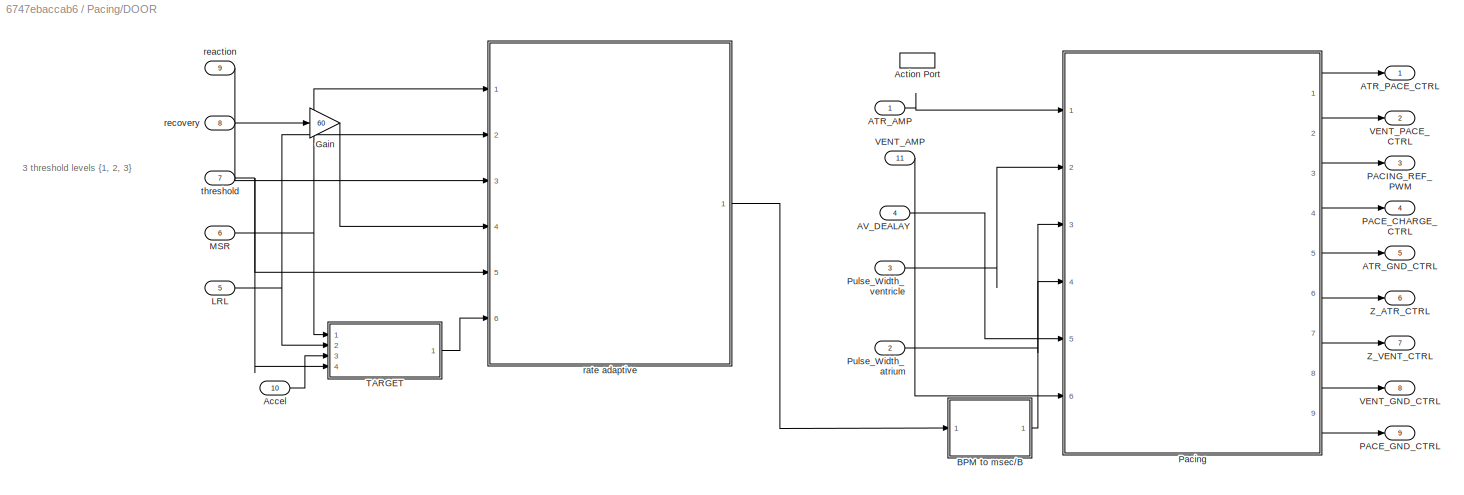
BLOCK [SubSystem] Pacing/DOOR
  Ports = [11, 9, 0, 0, 0, 0, 0, 1]
  PreDeleteFcn = Stateflow.SLINSF.SimulinkMan.removePreDeleteFcn
  RequestExecContextInheritance = off
  UndoDeleteFcn = Stateflow.SLINSF.SimulinkMan.restorePreDeleteFcn
BLOCK [Inport] Pacing/DOOR/ATR_AMP
BLOCK [Outport] Pacing/DOOR/ATR_GND_CTRL
  Port = 5
BLOCK [Outport] Pacing/DOOR/ATR_PACE_CTRL
BLOCK [Inport] Pacing/DOOR/AV_DEALAY
  Port = 4
BLOCK [Inport] Pacing/DOOR/Accel
  Port = 10
BLOCK [ActionPort] Pacing/DOOR/Action Port
  CopyFcn = Stateflow.SLINSF.SimulinkMan.removeBlockPreDeleteFcn
  PreDeleteFcn = Stateflow.SLINSF.SimulinkMan.unsafePredeleteFcn
BLOCK [SubSystem] Pacing/DOOR/BPM to msec//B 
  Ports = [1, 1]
  RequestExecContextInheritance = off
BLOCK [Constant] Pacing/DOOR/BPM to msec//B /1 min(msec)
  OutDataTypeStr = double
  Value = 60000
BLOCK [Product] Pacing/DOOR/BPM to msec//B /BPM to msec//B 
  Inputs = */
  OutDataTypeStr = uint16
  Ports = [2, 1]
  RndMeth = Nearest
BLOCK [Inport] Pacing/DOOR/BPM to msec//B /OUTPUT_PACE
BLOCK [Outport] Pacing/DOOR/BPM to msec//B /Out1
  OutDataTypeStr = uint16
BLOCK [Gain] Pacing/DOOR/Gain
  Gain = 60
BLOCK [Inport] Pacing/DOOR/LRL
  Port = 5
BLOCK [Inport] Pacing/DOOR/MSR
  Port = 6
BLOCK [Outport] Pacing/DOOR/PACE_CHARGE_CTRL
  Port = 4
BLOCK [Outport] Pacing/DOOR/PACE_GND_CTRL
  Port = 9
BLOCK [Outport] Pacing/DOOR/PACING_REF_PWM
  Port = 3
BLOCK [SubSystem] Pacing/DOOR/Pacing
  ErrorFcn = Stateflow.Translate.translate
  PermitHierarchicalResolution = ExplicitOnly
  PortSchema = {"entries":[{"content":{"sides":[{"content":{"connectorIds":["In1","In6","In5","In2","In3","In4"]},"type":"ConnectorPlacement.EquallySpacedRectSide","uuid":"72970874-2a7f-4f54-9c96-49c3612305c0"},{"content":{"connectorIds":["Out1","Out2","Out3","Out4","Out5","Out6","Out7","Out8","Out9"],"side":"RIGHT"},"type":"ConnectorPlacement.EquallySpacedRectSide","uuid":"785d6d73-c00d-4bb6-bac4-9062a7713100"}...<+326ch>
  Ports = [6, 9]
  RequestExecContextInheritance = off
  SFBlockType = Chart
  TreatAsAtomicUnit = on
BLOCK [Demux] Pacing/DOOR/Pacing/ Demux 
  Outputs = 1
  Ports = [1, 1]
BLOCK [S-Function] Pacing/DOOR/Pacing/ SFunction 
  EnableBusSupport = off
  FunctionName = sf_sfun
  PortCounts = [6 10]
  Ports = [6, 10]
  SFcnIsStateOwnerBlock = off
  SFunctionDeploymentMode = off
  Tag = Stateflow S-Function 11
BLOCK [Terminator] Pacing/DOOR/Pacing/ Terminator 
BLOCK [Outport] Pacing/DOOR/Pacing/ATR_GND_CTRL
  Port = 5
BLOCK [Outport] Pacing/DOOR/Pacing/ATR_PACE_CTRL
BLOCK [Inport] Pacing/DOOR/Pacing/ATR_PULSE_WIDTH
  Port = 3
BLOCK [Inport] Pacing/DOOR/Pacing/AV_DELAY
  Port = 5
BLOCK [Inport] Pacing/DOOR/Pacing/A_Amplitude
BLOCK [Inport] Pacing/DOOR/Pacing/INTERVAL
  Port = 4
BLOCK [Outport] Pacing/DOOR/Pacing/PACE_CHARGE_CTRL
  Port = 4
BLOCK [Outport] Pacing/DOOR/Pacing/PACE_GND_CTRL
  Port = 9
BLOCK [Outport] Pacing/DOOR/Pacing/PACING_REF_PWM
  Port = 3
BLOCK [Outport] Pacing/DOOR/Pacing/VENT_GND_CTRL
  Port = 8
BLOCK [Outport] Pacing/DOOR/Pacing/VENT_PACE_CTRL
  Port = 2
BLOCK [Inport] Pacing/DOOR/Pacing/VENT_PULSE_WIDTH
  Port = 2
BLOCK [Inport] Pacing/DOOR/Pacing/V_Amplitude
  Port = 6
BLOCK [Outport] Pacing/DOOR/Pacing/Z_ATR_CTRL
  Port = 6
BLOCK [Outport] Pacing/DOOR/Pacing/Z_VENT_CTRL
  Port = 7
BLOCK [Inport] Pacing/DOOR/Pulse_Width_atrium
  Port = 2
BLOCK [Inport] Pacing/DOOR/Pulse_Width_ventricle
  Port = 3
BLOCK [SubSystem] Pacing/DOOR/TARGET
  Ports = [4, 1]
  RequestExecContextInheritance = off
BLOCK [Inport] Pacing/DOOR/TARGET/Accel
  Port = 3
BLOCK [Sum] Pacing/DOOR/TARGET/Add1
  IconShape = rectangular
  Inputs = +-
  Ports = [2, 1]
BLOCK [Sum] Pacing/DOOR/TARGET/Add2
  IconShape = rectangular
  Inputs = +++
  Ports = [3, 1]
BLOCK [Reference] Pacing/DOOR/TARGET/Compare To Constant  REF=simulink/Logic and Bit
Operations/Compare
To Constant
  Ports = [1, 1]
  SourceBlock = simulink/Logic and Bit\nOperations/Compare\nTo Constant
  SourceProductBaseCode = SL
  SourceType = Compare To Constant
BLOCK [Reference] Pacing/DOOR/TARGET/Compare To Constant1  REF=simulink/Logic and Bit
Operations/Compare
To Constant
  Ports = [1, 1]
  SourceBlock = simulink/Logic and Bit\nOperations/Compare\nTo Constant
  SourceProductBaseCode = SL
  SourceType = Compare To Constant
BLOCK [Reference] Pacing/DOOR/TARGET/Compare To Constant2  REF=simulink/Logic and Bit
Operations/Compare
To Constant
  Ports = [1, 1]
  SourceBlock = simulink/Logic and Bit\nOperations/Compare\nTo Constant
  SourceProductBaseCode = SL
  SourceType = Compare To Constant
BLOCK [Constant] Pacing/DOOR/TARGET/Constant
  OutDataTypeStr = single
  Value = 16
BLOCK [Constant] Pacing/DOOR/TARGET/Constant1
  OutDataTypeStr = single
  Value = 8
BLOCK [Constant] Pacing/DOOR/TARGET/Constant2
  OutDataTypeStr = single
  Value = 25
BLOCK [Constant] Pacing/DOOR/TARGET/Constant3
  OutDataTypeStr = single
  Value = 32
BLOCK [Constant] Pacing/DOOR/TARGET/Constant4
  OutDataTypeStr = single
  Value = 40
BLOCK [Constant] Pacing/DOOR/TARGET/Constant5
  OutDataTypeStr = single
  Value = 50
BLOCK [Product] Pacing/DOOR/TARGET/Divide
  Inputs = */
  Ports = [2, 1]
BLOCK [Inport] Pacing/DOOR/TARGET/LRL
  Port = 2
BLOCK [Inport] Pacing/DOOR/TARGET/MSR
BLOCK [Reference] Pacing/DOOR/TARGET/MinMax Running Resettable  REF=simulink/Math
Operations/MinMax
Running
Resettable
  Ports = [2, 1]
  SourceBlock = simulink/Math\nOperations/MinMax\nRunning\nResettable
  SourceProductBaseCode = SL
  SourceType = MinMax Running Resettable
BLOCK [Reference] Pacing/DOOR/TARGET/MinMax Running Resettable1  REF=simulink/Math
Operations/MinMax
Running
Resettable
  Ports = [2, 1]
  SourceBlock = simulink/Math\nOperations/MinMax\nRunning\nResettable
  SourceProductBaseCode = SL
  SourceType = MinMax Running Resettable
BLOCK [MultiPortSwitch] Pacing/DOOR/TARGET/Multiport Switch
  InputSameDT = off
  OutDataTypeStr = double
  Ports = [4, 1]
  SaturateOnIntegerOverflow = off
BLOCK [MultiPortSwitch] Pacing/DOOR/TARGET/Multiport Switch1
  InputSameDT = off
  Inputs = 7
  Ports = [8, 1]
  SaturateOnIntegerOverflow = off
BLOCK [Product] Pacing/DOOR/TARGET/Product
  Ports = [2, 1]
BLOCK [DiscretePulseGenerator] Pacing/DOOR/TARGET/Pulse Generator
  Ports = [0, 1]
  PulseType = Time based
  PulseWidth = 2.5
BLOCK [Outport] Pacing/DOOR/TARGET/TARGET_RATE
BLOCK [Inport] Pacing/DOOR/TARGET/THRESHOLD
  Port = 4
BLOCK [Constant] Pacing/DOOR/TARGET/const
  Value = 1.75
BLOCK [Inport] Pacing/DOOR/VENT_AMP
  Port = 11
BLOCK [Outport] Pacing/DOOR/VENT_GND_CTRL
  Port = 8
BLOCK [Outport] Pacing/DOOR/VENT_PACE_CTRL
  Port = 2
BLOCK [Outport] Pacing/DOOR/Z_ATR_CTRL
  Port = 6
BLOCK [Outport] Pacing/DOOR/Z_VENT_CTRL
  Port = 7
BLOCK [SubSystem] Pacing/DOOR/rate adaptive
  ErrorFcn = Stateflow.Translate.translate
  PermitHierarchicalResolution = ExplicitOnly
  Ports = [6, 1]
  RequestExecContextInheritance = off
  SFBlockType = Chart
  TreatAsAtomicUnit = on
BLOCK [Demux] Pacing/DOOR/rate adaptive/ Demux 
  Outputs = 1
  Ports = [1, 1]
BLOCK [S-Function] Pacing/DOOR/rate adaptive/ SFunction 
  EnableBusSupport = off
  FunctionName = sf_sfun
  PortCounts = [6 2]
  Ports = [6, 2]
  SFcnIsStateOwnerBlock = off
  SFunctionDeploymentMode = off
  Tag = Stateflow S-Function 16
BLOCK [Terminator] Pacing/DOOR/rate adaptive/ Terminator 
BLOCK [Inport] Pacing/DOOR/rate adaptive/ACTIVITY_THRESHOLD
  Port = 5
BLOCK [Inport] Pacing/DOOR/rate adaptive/LRL
  Port = 2
BLOCK [Inport] Pacing/DOOR/rate adaptive/MSR
BLOCK [Outport] Pacing/DOOR/rate adaptive/OUTPUT_PACE
BLOCK [Inport] Pacing/DOOR/rate adaptive/REACTION_TIME
  Port = 3
BLOCK [Inport] Pacing/DOOR/rate adaptive/RECOVERY_TIME
  Port = 4
BLOCK [Inport] Pacing/DOOR/rate adaptive/TARGET_RATE
  Port = 6
BLOCK [Inport] Pacing/DOOR/reaction
  Port = 9
BLOCK [Inport] Pacing/DOOR/recovery
  Port = 8
BLOCK [Inport] Pacing/DOOR/threshold
  Port = 7
BLOCK [Inport] Pacing/LRL
  Port = 7
BLOCK [Inport] Pacing/MODE
  Port = 4
BLOCK [Inport] Pacing/MSR
  Port = 15
BLOCK [Outport] Pacing/PACE_CHARGE_CTRL
  Port = 4
BLOCK [Outport] Pacing/PACE_GND_CTRL
  Port = 9
BLOCK [Outport] Pacing/PACING_REF_PWM
  Port = 3
BLOCK [Inport] Pacing/Pulse_Width_atrium
  Port = 6
BLOCK [Inport] Pacing/Pulse_Width_ventricle
  Port = 10
BLOCK [Inport] Pacing/VENT_AMP
  Port = 16
BLOCK [Inport] Pacing/VENT_CMP_DETECT
  Port = 2
BLOCK [Outport] Pacing/VENT_GND_CTRL
  Port = 8
BLOCK [Outport] Pacing/VENT_PACE_CTRL
  Port = 2
BLOCK [SubSystem] Pacing/VOO
  Ports = [3, 9, 0, 0, 0, 0, 0, 1]
  PreDeleteFcn = Stateflow.SLINSF.SimulinkMan.removePreDeleteFcn
  RequestExecContextInheritance = off
  UndoDeleteFcn = Stateflow.SLINSF.SimulinkMan.restorePreDeleteFcn
BLOCK [Outport] Pacing/VOO/ATR_GND_CTRL
  Port = 5
BLOCK [Outport] Pacing/VOO/ATR_PACE_CTRL
BLOCK [ActionPort] Pacing/VOO/Action Port
  CopyFcn = Stateflow.SLINSF.SimulinkMan.removeBlockPreDeleteFcn
  PreDeleteFcn = Stateflow.SLINSF.SimulinkMan.unsafePredeleteFcn
BLOCK [SubSystem] Pacing/VOO/BPM to msec//B 
  Ports = [1, 1]
  RequestExecContextInheritance = off
BLOCK [Constant] Pacing/VOO/BPM to msec//B /1 min(msec)
  OutDataTypeStr = double
  Value = 60000
BLOCK [Product] Pacing/VOO/BPM to msec//B /BPM to msec//B 
  Inputs = */
  OutDataTypeStr = uint16
  Ports = [2, 1]
  RndMeth = Nearest
BLOCK [Inport] Pacing/VOO/BPM to msec//B /LRL
BLOCK [Outport] Pacing/VOO/BPM to msec//B /Out1
BLOCK [SubSystem] Pacing/VOO/Chart
  ErrorFcn = Stateflow.Translate.translate
  PermitHierarchicalResolution = ExplicitOnly
  Ports = [3, 9]
  RequestExecContextInheritance = off
  SFBlockType = Chart
  TreatAsAtomicUnit = on
BLOCK [Demux] Pacing/VOO/Chart/ Demux 
  Outputs = 1
  Ports = [1, 1]
BLOCK [S-Function] Pacing/VOO/Chart/ SFunction 
  EnableBusSupport = off
  FunctionName = sf_sfun
  PortCounts = [3 10]
  Ports = [3, 10]
  SFcnIsStateOwnerBlock = off
  SFunctionDeploymentMode = off
  Tag = Stateflow S-Function 2
BLOCK [Terminator] Pacing/VOO/Chart/ Terminator 
BLOCK [Outport] Pacing/VOO/Chart/ATR_GND_CTRL
  Port = 5
BLOCK [Outport] Pacing/VOO/Chart/ATR_PACE_CTRL
BLOCK [Inport] Pacing/VOO/Chart/Amplitude
BLOCK [Inport] Pacing/VOO/Chart/LRL
  Port = 3
BLOCK [Outport] Pacing/VOO/Chart/PACE_CHARGE_CTRL
  Port = 4
BLOCK [Outport] Pacing/VOO/Chart/PACE_GND_CTRL
  Port = 9
BLOCK [Outport] Pacing/VOO/Chart/PACING_REF_PWM
  Port = 3
BLOCK [Inport] Pacing/VOO/Chart/PULSE_WIDTH
  Port = 2
BLOCK [Outport] Pacing/VOO/Chart/VENT_GND_CTRL
  Port = 8
BLOCK [Outport] Pacing/VOO/Chart/VENT_PACE_CTRL
  Port = 2
BLOCK [Outport] Pacing/VOO/Chart/Z_ATR_CTRL
  Port = 6
BLOCK [Outport] Pacing/VOO/Chart/Z_VENT_CTRL
  Port = 7
BLOCK [Inport] Pacing/VOO/LRL
  Port = 3
BLOCK [Outport] Pacing/VOO/PACE_CHARGE_CTRL
  Port = 4
BLOCK [Outport] Pacing/VOO/PACE_GND_CTRL
  Port = 9
BLOCK [Outport] Pacing/VOO/PACING_REF_PWM
  Port = 3
BLOCK [Inport] Pacing/VOO/Pulse_Width_ventricle
  Port = 2
BLOCK [Inport] Pacing/VOO/VENT_AMP
BLOCK [Outport] Pacing/VOO/VENT_GND_CTRL
  Port = 8
BLOCK [Outport] Pacing/VOO/VENT_PACE_CTRL
  Port = 2
BLOCK [Outport] Pacing/VOO/Z_ATR_CTRL
  Port = 6
BLOCK [Outport] Pacing/VOO/Z_VENT_CTRL
  Port = 7
BLOCK [SubSystem] Pacing/VOOR
  Ports = [8, 9, 0, 0, 0, 0, 0, 1]
  PreDeleteFcn = Stateflow.SLINSF.SimulinkMan.removePreDeleteFcn
  RequestExecContextInheritance = off
  UndoDeleteFcn = Stateflow.SLINSF.SimulinkMan.restorePreDeleteFcn
BLOCK [Outport] Pacing/VOOR/ATR_GND_CTRL
  Port = 5
BLOCK [Outport] Pacing/VOOR/ATR_PACE_CTRL
BLOCK [Inport] Pacing/VOOR/Accel
  Port = 8
BLOCK [ActionPort] Pacing/VOOR/Action Port
  CopyFcn = Stateflow.SLINSF.SimulinkMan.removeBlockPreDeleteFcn
  PreDeleteFcn = Stateflow.SLINSF.SimulinkMan.unsafePredeleteFcn
BLOCK [SubSystem] Pacing/VOOR/BPM to msec//B 
  Ports = [1, 1]
  RequestExecContextInheritance = off
BLOCK [Constant] Pacing/VOOR/BPM to msec//B /1 min(msec)
  OutDataTypeStr = double
  Value = 60000
BLOCK [Product] Pacing/VOOR/BPM to msec//B /BPM to msec//B 
  Inputs = */
  OutDataTypeStr = uint16
  Ports = [2, 1]
  RndMeth = Nearest
BLOCK [Inport] Pacing/VOOR/BPM to msec//B /OUTPUT_PACE
BLOCK [Outport] Pacing/VOOR/BPM to msec//B /Out1
BLOCK [SubSystem] Pacing/VOOR/Chart
  ErrorFcn = Stateflow.Translate.translate
  PermitHierarchicalResolution = ExplicitOnly
  Ports = [3, 9]
  RequestExecContextInheritance = off
  SFBlockType = Chart
  TreatAsAtomicUnit = on
BLOCK [Demux] Pacing/VOOR/Chart/ Demux 
  Outputs = 1
  Ports = [1, 1]
BLOCK [S-Function] Pacing/VOOR/Chart/ SFunction 
  EnableBusSupport = off
  FunctionName = sf_sfun
  PortCounts = [3 10]
  Ports = [3, 10]
  SFcnIsStateOwnerBlock = off
  SFunctionDeploymentMode = off
  Tag = Stateflow S-Function 8
BLOCK [Terminator] Pacing/VOOR/Chart/ Terminator 
BLOCK [Outport] Pacing/VOOR/Chart/ATR_GND_CTRL
  Port = 5
BLOCK [Outport] Pacing/VOOR/Chart/ATR_PACE_CTRL
BLOCK [Inport] Pacing/VOOR/Chart/Amplitude
BLOCK [Inport] Pacing/VOOR/Chart/LRL
  Port = 3
BLOCK [Outport] Pacing/VOOR/Chart/PACE_CHARGE_CTRL
  Port = 4
BLOCK [Outport] Pacing/VOOR/Chart/PACE_GND_CTRL
  Port = 9
BLOCK [Outport] Pacing/VOOR/Chart/PACING_REF_PWM
  Port = 3
BLOCK [Inport] Pacing/VOOR/Chart/PULSE_WIDTH
  Port = 2
BLOCK [Outport] Pacing/VOOR/Chart/VENT_GND_CTRL
  Port = 8
BLOCK [Outport] Pacing/VOOR/Chart/VENT_PACE_CTRL
  Port = 2
BLOCK [Outport] Pacing/VOOR/Chart/Z_ATR_CTRL
  Port = 6
BLOCK [Outport] Pacing/VOOR/Chart/Z_VENT_CTRL
  Port = 7
BLOCK [Gain] Pacing/VOOR/Gain
  Gain = 60
BLOCK [Inport] Pacing/VOOR/LRL
  Port = 3
BLOCK [Inport] Pacing/VOOR/MSR
  Port = 4
BLOCK [Outport] Pacing/VOOR/PACE_CHARGE_CTRL
  Port = 4
BLOCK [Outport] Pacing/VOOR/PACE_GND_CTRL
  Port = 9
BLOCK [Outport] Pacing/VOOR/PACING_REF_PWM
  Port = 3
BLOCK [Inport] Pacing/VOOR/Pulse_Width_ventricle
  Port = 2
BLOCK [SubSystem] Pacing/VOOR/TARGET
  Ports = [4, 1]
  RequestExecContextInheritance = off
BLOCK [Inport] Pacing/VOOR/TARGET/Accel
  Port = 3
BLOCK [Sum] Pacing/VOOR/TARGET/Add1
  IconShape = rectangular
  Inputs = +-
  Ports = [2, 1]
BLOCK [Sum] Pacing/VOOR/TARGET/Add2
  IconShape = rectangular
  Inputs = +++
  Ports = [3, 1]
BLOCK [Reference] Pacing/VOOR/TARGET/Compare To Constant  REF=simulink/Logic and Bit
Operations/Compare
To Constant
  Ports = [1, 1]
  SourceBlock = simulink/Logic and Bit\nOperations/Compare\nTo Constant
  SourceProductBaseCode = SL
  SourceType = Compare To Constant
BLOCK [Reference] Pacing/VOOR/TARGET/Compare To Constant1  REF=simulink/Logic and Bit
Operations/Compare
To Constant
  Ports = [1, 1]
  SourceBlock = simulink/Logic and Bit\nOperations/Compare\nTo Constant
  SourceProductBaseCode = SL
  SourceType = Compare To Constant
BLOCK [Reference] Pacing/VOOR/TARGET/Compare To Constant2  REF=simulink/Logic and Bit
Operations/Compare
To Constant
  Ports = [1, 1]
  SourceBlock = simulink/Logic and Bit\nOperations/Compare\nTo Constant
  SourceProductBaseCode = SL
  SourceType = Compare To Constant
BLOCK [Constant] Pacing/VOOR/TARGET/Constant
  OutDataTypeStr = single
  Value = 16
BLOCK [Constant] Pacing/VOOR/TARGET/Constant1
  OutDataTypeStr = single
  Value = 8
BLOCK [Constant] Pacing/VOOR/TARGET/Constant2
  OutDataTypeStr = single
  Value = 25
BLOCK [Constant] Pacing/VOOR/TARGET/Constant3
  OutDataTypeStr = single
  Value = 32
BLOCK [Constant] Pacing/VOOR/TARGET/Constant4
  OutDataTypeStr = single
  Value = 40
BLOCK [Constant] Pacing/VOOR/TARGET/Constant5
  OutDataTypeStr = single
  Value = 50
BLOCK [Product] Pacing/VOOR/TARGET/Divide
  Inputs = */
  Ports = [2, 1]
BLOCK [Inport] Pacing/VOOR/TARGET/LRL
  Port = 2
BLOCK [Inport] Pacing/VOOR/TARGET/MSR
BLOCK [Reference] Pacing/VOOR/TARGET/MinMax Running Resettable  REF=simulink/Math
Operations/MinMax
Running
Resettable
  Ports = [2, 1]
  SourceBlock = simulink/Math\nOperations/MinMax\nRunning\nResettable
  SourceProductBaseCode = SL
  SourceType = MinMax Running Resettable
BLOCK [Reference] Pacing/VOOR/TARGET/MinMax Running Resettable1  REF=simulink/Math
Operations/MinMax
Running
Resettable
  Ports = [2, 1]
  SourceBlock = simulink/Math\nOperations/MinMax\nRunning\nResettable
  SourceProductBaseCode = SL
  SourceType = MinMax Running Resettable
BLOCK [MultiPortSwitch] Pacing/VOOR/TARGET/Multiport Switch
  InputSameDT = off
  OutDataTypeStr = double
  Ports = [4, 1]
  SaturateOnIntegerOverflow = off
BLOCK [MultiPortSwitch] Pacing/VOOR/TARGET/Multiport Switch1
  InputSameDT = off
  Inputs = 7
  Ports = [8, 1]
  SaturateOnIntegerOverflow = off
BLOCK [Product] Pacing/VOOR/TARGET/Product
  Ports = [2, 1]
BLOCK [DiscretePulseGenerator] Pacing/VOOR/TARGET/Pulse Generator
  Ports = [0, 1]
  PulseType = Time based
  PulseWidth = 2.5
BLOCK [Outport] Pacing/VOOR/TARGET/TARGET_RATE
BLOCK [Inport] Pacing/VOOR/TARGET/THRESHOLD
  Port = 4
BLOCK [Constant] Pacing/VOOR/TARGET/const
  Value = 1.75
BLOCK [Inport] Pacing/VOOR/VENT_AMP
BLOCK [Outport] Pacing/VOOR/VENT_GND_CTRL
  Port = 8
BLOCK [Outport] Pacing/VOOR/VENT_PACE_CTRL
  Port = 2
BLOCK [Outport] Pacing/VOOR/Z_ATR_CTRL
  Port = 6
BLOCK [Outport] Pacing/VOOR/Z_VENT_CTRL
  Port = 7
BLOCK [SubSystem] Pacing/VOOR/rate adaptive
  ErrorFcn = Stateflow.Translate.translate
  PermitHierarchicalResolution = ExplicitOnly
  Ports = [6, 1]
  RequestExecContextInheritance = off
  SFBlockType = Chart
  TreatAsAtomicUnit = on
BLOCK [Demux] Pacing/VOOR/rate adaptive/ Demux 
  Outputs = 1
  Ports = [1, 1]
BLOCK [S-Function] Pacing/VOOR/rate adaptive/ SFunction 
  EnableBusSupport = off
  FunctionName = sf_sfun
  PortCounts = [6 2]
  Ports = [6, 2]
  SFcnIsStateOwnerBlock = off
  SFunctionDeploymentMode = off
  Tag = Stateflow S-Function 13
BLOCK [Terminator] Pacing/VOOR/rate adaptive/ Terminator 
BLOCK [Inport] Pacing/VOOR/rate adaptive/ACTIVITY_THRESHOLD
  Port = 5
BLOCK [Inport] Pacing/VOOR/rate adaptive/LRL
  Port = 2
BLOCK [Inport] Pacing/VOOR/rate adaptive/MSR
BLOCK [Outport] Pacing/VOOR/rate adaptive/OUTPUT_PACE
BLOCK [Inport] Pacing/VOOR/rate adaptive/REACTION_TIME
  Port = 3
BLOCK [Inport] Pacing/VOOR/rate adaptive/RECOVERY_TIME
  Port = 4
BLOCK [Inport] Pacing/VOOR/rate adaptive/TARGET_RATE
  Port = 6
BLOCK [Inport] Pacing/VOOR/reaction
  Port = 7
BLOCK [Inport] Pacing/VOOR/recovery
  Port = 6
BLOCK [Inport] Pacing/VOOR/threshold
  Port = 5
BLOCK [Inport] Pacing/VRP
  Port = 9
BLOCK [SubSystem] Pacing/VVI
  Ports = [5, 9, 0, 0, 0, 0, 0, 1]
  PreDeleteFcn = Stateflow.SLINSF.SimulinkMan.removePreDeleteFcn
  RequestExecContextInheritance = off
  UndoDeleteFcn = Stateflow.SLINSF.SimulinkMan.restorePreDeleteFcn
BLOCK [Outport] Pacing/VVI/ATR_GND_CTRL
  Port = 5
BLOCK [Outport] Pacing/VVI/ATR_PACE_CTRL
BLOCK [ActionPort] Pacing/VVI/Action Port
  CopyFcn = Stateflow.SLINSF.SimulinkMan.removeBlockPreDeleteFcn
  PreDeleteFcn = Stateflow.SLINSF.SimulinkMan.unsafePredeleteFcn
BLOCK [SubSystem] Pacing/VVI/BPM to msec//B 
  Ports = [1, 1]
  RequestExecContextInheritance = off
BLOCK [Constant] Pacing/VVI/BPM to msec//B /1 min(msec)
  OutDataTypeStr = double
  Value = 60000
BLOCK [Product] Pacing/VVI/BPM to msec//B /BPM to msec//B 
  Inputs = */
  OutDataTypeStr = uint16
  Ports = [2, 1]
  RndMeth = Nearest
BLOCK [Inport] Pacing/VVI/BPM to msec//B /LRL
BLOCK [Outport] Pacing/VVI/BPM to msec//B /Out1
BLOCK [SubSystem] Pacing/VVI/Chart
  ErrorFcn = Stateflow.Translate.translate
  PermitHierarchicalResolution = ExplicitOnly
  Ports = [5, 9]
  RequestExecContextInheritance = off
  SFBlockType = Chart
  TreatAsAtomicUnit = on
BLOCK [Demux] Pacing/VVI/Chart/ Demux 
  Outputs = 1
  Ports = [1, 1]
BLOCK [S-Function] Pacing/VVI/Chart/ SFunction 
  EnableBusSupport = off
  FunctionName = sf_sfun
  PortCounts = [5 10]
  Ports = [5, 10]
  SFcnIsStateOwnerBlock = off
  SFunctionDeploymentMode = off
  Tag = Stateflow S-Function 4
BLOCK [Terminator] Pacing/VVI/Chart/ Terminator 
BLOCK [Outport] Pacing/VVI/Chart/ATR_GND_CTRL
  Port = 5
BLOCK [Outport] Pacing/VVI/Chart/ATR_PACE_CTRL
BLOCK [Inport] Pacing/VVI/Chart/Amplitude
  Port = 3
BLOCK [Inport] Pacing/VVI/Chart/LRL
  Port = 5
BLOCK [Outport] Pacing/VVI/Chart/PACE_CHARGE_CTRL
  Port = 4
BLOCK [Outport] Pacing/VVI/Chart/PACE_GND_CTRL
  Port = 9
BLOCK [Outport] Pacing/VVI/Chart/PACING_REF_PWM
  Port = 3
BLOCK [Inport] Pacing/VVI/Chart/PULSE_WIDTH
  Port = 4
BLOCK [Inport] Pacing/VVI/Chart/SENSED
BLOCK [Outport] Pacing/VVI/Chart/VENT_GND_CTRL
  Port = 8
BLOCK [Outport] Pacing/VVI/Chart/VENT_PACE_CTRL
  Port = 2
BLOCK [Inport] Pacing/VVI/Chart/VRP
  Port = 2
BLOCK [Outport] Pacing/VVI/Chart/Z_ATR_CTRL
  Port = 6
BLOCK [Outport] Pacing/VVI/Chart/Z_VENT_CTRL
  Port = 7
BLOCK [Inport] Pacing/VVI/LRL
  Port = 3
BLOCK [Outport] Pacing/VVI/PACE_CHARGE_CTRL
  Port = 4
BLOCK [Outport] Pacing/VVI/PACE_GND_CTRL
  Port = 9
BLOCK [Outport] Pacing/VVI/PACING_REF_PWM
  Port = 3
BLOCK [Inport] Pacing/VVI/Pulse_Width_ventricle
  Port = 2
BLOCK [Inport] Pacing/VVI/VENT_AMP
BLOCK [Inport] Pacing/VVI/VENT_CMP_DETECT
  Port = 5
BLOCK [Outport] Pacing/VVI/VENT_GND_CTRL
  Port = 8
BLOCK [Outport] Pacing/VVI/VENT_PACE_CTRL
  Port = 2
BLOCK [Inport] Pacing/VVI/VRP
  Port = 4
BLOCK [Outport] Pacing/VVI/Z_ATR_CTRL
  Port = 6
BLOCK [Outport] Pacing/VVI/Z_VENT_CTRL
  Port = 7
BLOCK [SubSystem] Pacing/VVIR
  Ports = [10, 9, 0, 0, 0, 0, 0, 1]
  PreDeleteFcn = Stateflow.SLINSF.SimulinkMan.removePreDeleteFcn
  RequestExecContextInheritance = off
  UndoDeleteFcn = Stateflow.SLINSF.SimulinkMan.restorePreDeleteFcn
BLOCK [Outport] Pacing/VVIR/ATR_GND_CTRL
  Port = 5
BLOCK [Outport] Pacing/VVIR/ATR_PACE_CTRL
BLOCK [Inport] Pacing/VVIR/Accel
  Port = 10
BLOCK [ActionPort] Pacing/VVIR/Action Port
  CopyFcn = Stateflow.SLINSF.SimulinkMan.removeBlockPreDeleteFcn
  PreDeleteFcn = Stateflow.SLINSF.SimulinkMan.unsafePredeleteFcn
BLOCK [SubSystem] Pacing/VVIR/BPM to msec//B 
  Ports = [1, 1]
  RequestExecContextInheritance = off
BLOCK [Constant] Pacing/VVIR/BPM to msec//B /1 min(msec)
  OutDataTypeStr = double
  Value = 60000
BLOCK [Product] Pacing/VVIR/BPM to msec//B /BPM to msec//B 
  Inputs = */
  OutDataTypeStr = uint16
  Ports = [2, 1]
  RndMeth = Nearest
BLOCK [Inport] Pacing/VVIR/BPM to msec//B /LRL
BLOCK [Outport] Pacing/VVIR/BPM to msec//B /Out1
BLOCK [SubSystem] Pacing/VVIR/Chart
  ErrorFcn = Stateflow.Translate.translate
  PermitHierarchicalResolution = ExplicitOnly
  Ports = [5, 9]
  RequestExecContextInheritance = off
  SFBlockType = Chart
  TreatAsAtomicUnit = on
BLOCK [Demux] Pacing/VVIR/Chart/ Demux 
  Outputs = 1
  Ports = [1, 1]
BLOCK [S-Function] Pacing/VVIR/Chart/ SFunction 
  EnableBusSupport = off
  FunctionName = sf_sfun
  PortCounts = [5 10]
  Ports = [5, 10]
  SFcnIsStateOwnerBlock = off
  SFunctionDeploymentMode = off
  Tag = Stateflow S-Function 10
BLOCK [Terminator] Pacing/VVIR/Chart/ Terminator 
BLOCK [Outport] Pacing/VVIR/Chart/ATR_GND_CTRL
  Port = 5
BLOCK [Outport] Pacing/VVIR/Chart/ATR_PACE_CTRL
BLOCK [Inport] Pacing/VVIR/Chart/Amplitude
  Port = 3
BLOCK [Inport] Pacing/VVIR/Chart/LRL
  Port = 5
BLOCK [Outport] Pacing/VVIR/Chart/PACE_CHARGE_CTRL
  Port = 4
BLOCK [Outport] Pacing/VVIR/Chart/PACE_GND_CTRL
  Port = 9
BLOCK [Outport] Pacing/VVIR/Chart/PACING_REF_PWM
  Port = 3
BLOCK [Inport] Pacing/VVIR/Chart/PULSE_WIDTH
  Port = 4
BLOCK [Inport] Pacing/VVIR/Chart/SENSED
BLOCK [Outport] Pacing/VVIR/Chart/VENT_GND_CTRL
  Port = 8
BLOCK [Outport] Pacing/VVIR/Chart/VENT_PACE_CTRL
  Port = 2
BLOCK [Inport] Pacing/VVIR/Chart/VRP
  Port = 2
BLOCK [Outport] Pacing/VVIR/Chart/Z_ATR_CTRL
  Port = 6
BLOCK [Outport] Pacing/VVIR/Chart/Z_VENT_CTRL
  Port = 7
BLOCK [Gain] Pacing/VVIR/Gain
  Gain = 60
BLOCK [Inport] Pacing/VVIR/LRL
  Port = 5
BLOCK [Inport] Pacing/VVIR/MSR
  Port = 6
BLOCK [Outport] Pacing/VVIR/PACE_CHARGE_CTRL
  Port = 4
BLOCK [Outport] Pacing/VVIR/PACE_GND_CTRL
  Port = 9
BLOCK [Outport] Pacing/VVIR/PACING_REF_PWM
  Port = 3
BLOCK [Inport] Pacing/VVIR/Pulse_Width_ventricle
  Port = 2
BLOCK [SubSystem] Pacing/VVIR/TARGET
  Ports = [4, 1]
  RequestExecContextInheritance = off
BLOCK [Inport] Pacing/VVIR/TARGET/Accel
  Port = 3
BLOCK [Sum] Pacing/VVIR/TARGET/Add1
  IconShape = rectangular
  Inputs = +-
  Ports = [2, 1]
BLOCK [Sum] Pacing/VVIR/TARGET/Add2
  IconShape = rectangular
  Inputs = +++
  Ports = [3, 1]
BLOCK [Reference] Pacing/VVIR/TARGET/Compare To Constant  REF=simulink/Logic and Bit
Operations/Compare
To Constant
  Ports = [1, 1]
  SourceBlock = simulink/Logic and Bit\nOperations/Compare\nTo Constant
  SourceProductBaseCode = SL
  SourceType = Compare To Constant
BLOCK [Reference] Pacing/VVIR/TARGET/Compare To Constant1  REF=simulink/Logic and Bit
Operations/Compare
To Constant
  Ports = [1, 1]
  SourceBlock = simulink/Logic and Bit\nOperations/Compare\nTo Constant
  SourceProductBaseCode = SL
  SourceType = Compare To Constant
BLOCK [Reference] Pacing/VVIR/TARGET/Compare To Constant2  REF=simulink/Logic and Bit
Operations/Compare
To Constant
  Ports = [1, 1]
  SourceBlock = simulink/Logic and Bit\nOperations/Compare\nTo Constant
  SourceProductBaseCode = SL
  SourceType = Compare To Constant
BLOCK [Constant] Pacing/VVIR/TARGET/Constant
  OutDataTypeStr = single
  Value = 16
BLOCK [Constant] Pacing/VVIR/TARGET/Constant1
  OutDataTypeStr = single
  Value = 8
BLOCK [Constant] Pacing/VVIR/TARGET/Constant2
  OutDataTypeStr = single
  Value = 25
BLOCK [Constant] Pacing/VVIR/TARGET/Constant3
  OutDataTypeStr = single
  Value = 32
BLOCK [Constant] Pacing/VVIR/TARGET/Constant4
  OutDataTypeStr = single
  Value = 40
BLOCK [Constant] Pacing/VVIR/TARGET/Constant5
  OutDataTypeStr = single
  Value = 50
BLOCK [Product] Pacing/VVIR/TARGET/Divide
  Inputs = */
  Ports = [2, 1]
BLOCK [Inport] Pacing/VVIR/TARGET/LRL
  Port = 2
BLOCK [Inport] Pacing/VVIR/TARGET/MSR
BLOCK [Reference] Pacing/VVIR/TARGET/MinMax Running Resettable  REF=simulink/Math
Operations/MinMax
Running
Resettable
  Ports = [2, 1]
  SourceBlock = simulink/Math\nOperations/MinMax\nRunning\nResettable
  SourceProductBaseCode = SL
  SourceType = MinMax Running Resettable
BLOCK [Reference] Pacing/VVIR/TARGET/MinMax Running Resettable1  REF=simulink/Math
Operations/MinMax
Running
Resettable
  Ports = [2, 1]
  SourceBlock = simulink/Math\nOperations/MinMax\nRunning\nResettable
  SourceProductBaseCode = SL
  SourceType = MinMax Running Resettable
BLOCK [MultiPortSwitch] Pacing/VVIR/TARGET/Multiport Switch
  InputSameDT = off
  OutDataTypeStr = double
  Ports = [4, 1]
  SaturateOnIntegerOverflow = off
BLOCK [MultiPortSwitch] Pacing/VVIR/TARGET/Multiport Switch1
  InputSameDT = off
  Inputs = 7
  Ports = [8, 1]
  SaturateOnIntegerOverflow = off
BLOCK [Product] Pacing/VVIR/TARGET/Product
  Ports = [2, 1]
BLOCK [DiscretePulseGenerator] Pacing/VVIR/TARGET/Pulse Generator
  Ports = [0, 1]
  PulseType = Time based
  PulseWidth = 2.5
BLOCK [Outport] Pacing/VVIR/TARGET/TARGET_RATE
BLOCK [Inport] Pacing/VVIR/TARGET/THRESHOLD
  Port = 4
BLOCK [Constant] Pacing/VVIR/TARGET/const
  Value = 1.75
BLOCK [Inport] Pacing/VVIR/VENT_AMP
BLOCK [Inport] Pacing/VVIR/VENT_CMP_DETECT
  Port = 4
BLOCK [Outport] Pacing/VVIR/VENT_GND_CTRL
  Port = 8
BLOCK [Outport] Pacing/VVIR/VENT_PACE_CTRL
  Port = 2
BLOCK [Inport] Pacing/VVIR/VRP
  Port = 3
BLOCK [Outport] Pacing/VVIR/Z_ATR_CTRL
  Port = 6
BLOCK [Outport] Pacing/VVIR/Z_VENT_CTRL
  Port = 7
BLOCK [SubSystem] Pacing/VVIR/rate adaptive
  ErrorFcn = Stateflow.Translate.translate
  PermitHierarchicalResolution = ExplicitOnly
  Ports = [6, 1]
  RequestExecContextInheritance = off
  SFBlockType = Chart
  TreatAsAtomicUnit = on
BLOCK [Demux] Pacing/VVIR/rate adaptive/ Demux 
  Outputs = 1
  Ports = [1, 1]
BLOCK [S-Function] Pacing/VVIR/rate adaptive/ SFunction 
  EnableBusSupport = off
  FunctionName = sf_sfun
  PortCounts = [6 2]
  Ports = [6, 2]
  SFcnIsStateOwnerBlock = off
  SFunctionDeploymentMode = off
  Tag = Stateflow S-Function 15
BLOCK [Terminator] Pacing/VVIR/rate adaptive/ Terminator 
BLOCK [Inport] Pacing/VVIR/rate adaptive/ACTIVITY_THRESHOLD
  Port = 5
BLOCK [Inport] Pacing/VVIR/rate adaptive/LRL
  Port = 2
BLOCK [Inport] Pacing/VVIR/rate adaptive/MSR
BLOCK [Outport] Pacing/VVIR/rate adaptive/OUTPUT_PACE
BLOCK [Inport] Pacing/VVIR/rate adaptive/REACTION_TIME
  Port = 3
BLOCK [Inport] Pacing/VVIR/rate adaptive/RECOVERY_TIME
  Port = 4
BLOCK [Inport] Pacing/VVIR/rate adaptive/TARGET_RATE
  Port = 6
BLOCK [Inport] Pacing/VVIR/reaction
  Port = 9
BLOCK [Inport] Pacing/VVIR/recovery
  Port = 8
BLOCK [Inport] Pacing/VVIR/threshold
  Port = 7
BLOCK [Outport] Pacing/Z_ATR_CTRL
  Port = 6
BLOCK [Outport] Pacing/Z_VENT_CTRL
  Port = 7
BLOCK [Inport] Pacing/reaction
  Port = 12
BLOCK [Inport] Pacing/recovery
  Port = 13
BLOCK [Inport] Pacing/threshold
  Port = 14
BLOCK [Reference] Serial Receive  REF=frdmk64flib/Serial Receive
  Ports = [0, 2]
  SourceBlock = frdmk64flib/Serial Receive
  SourceProductBaseCode = EC_FRDM_K64F
  SourceType = freedomk64f.SCIRead
BLOCK [SubSystem] Serial communication
  ErrorFcn = Stateflow.Translate.translate
  PermitHierarchicalResolution = ExplicitOnly
  PortSchema = {"entries":[{"content":{"sides":[{"content":{"connectorIds":["In1","In2"]},"type":"ConnectorPlacement.EquallySpacedRectSide","uuid":"22d5059d-5269-40e4-bb02-214949257961"},{"content":{"connectorIds":["Out1","Out7","Out12","Out10","Out5","Out9","Out3","Out8","Out13","Out11","Out2","Out6","Out4"],"side":"RIGHT"},"type":"ConnectorPlacement.EquallySpacedRectSide","uuid":"3f3534e9-4be2-4df7-860e-8da58c...<+336ch>
  Ports = [2, 13]
  RequestExecContextInheritance = off
  SFBlockType = Chart
  TreatAsAtomicUnit = on
BLOCK [Demux] Serial communication/ Demux 
  Outputs = 1
  Ports = [1, 1]
BLOCK [S-Function] Serial communication/ SFunction 
  EnableBusSupport = on
  FunctionName = sf_sfun
  PortCounts = [2 14]
  Ports = [2, 14]
  SFcnIsStateOwnerBlock = off
  SFunctionDeploymentMode = off
  Tag = Stateflow S-Function 17
BLOCK [Terminator] Serial communication/ Terminator 
BLOCK [Outport] Serial communication/ARP
  Port = 10
BLOCK [Outport] Serial communication/ATR_AMP
  Port = 7
BLOCK [Outport] Serial communication/AV_DELAY
  Port = 11
BLOCK [Outport] Serial communication/LRL
  Port = 8
BLOCK [Outport] Serial communication/MSR
  Port = 5
BLOCK [Outport] Serial communication/Mode
BLOCK [Outport] Serial communication/Pulse_width_atrium
  Port = 12
BLOCK [Outport] Serial communication/Pulse_width_ventricle
  Port = 13
BLOCK [Outport] Serial communication/VENT_AMP
  Port = 3
BLOCK [Outport] Serial communication/VRP
  Port = 9
BLOCK [SubSystem] Serial communication/egram_and_confimation
  Ports = [0, 0, 0, 0, 0, 0, 0, 1]
  PreDeleteFcn = Stateflow.SLINSF.SimulinkMan.removePreDeleteFcn
  RequestExecContextInheritance = off
  UndoDeleteFcn = Stateflow.SLINSF.SimulinkMan.restorePreDeleteFcn
BLOCK [Reference] Serial communication/egram_and_confimation/ATR_SIGNAL  REF=frdmk64flib/Analog Input
  Ports = [0, 1]
  SourceBlock = frdmk64flib/Analog Input
  SourceProductBaseCode = EC_FRDM_K64F
  SourceType = freedomk64f.AnalogInput
BLOCK [ActionPort] Serial communication/egram_and_confimation/Action Port
  CopyFcn = Stateflow.SLINSF.SimulinkMan.removeBlockPreDeleteFcn
  PreDeleteFcn = Stateflow.SLINSF.SimulinkMan.unsafePredeleteFcn
BLOCK [Reference] Serial communication/egram_and_confimation/Byte Pack  REF=etargetslib/Byte Pack
  Ports = [1, 1]
  SourceBlock = etargetslib/Byte Pack
  SourceProductBaseCode = ME
  SourceType = Byte pack
BLOCK [Reference] Serial communication/egram_and_confimation/Byte Pack1  REF=etargetslib/Byte Pack
  Ports = [1, 1]
  SourceBlock = etargetslib/Byte Pack
  SourceProductBaseCode = ME
  SourceType = Byte pack
BLOCK [Constant] Serial communication/egram_and_confimation/Constant
  OutDataTypeStr = uint8
  Value = 0x18
BLOCK [Mux] Serial communication/egram_and_confimation/Mux
  DisplayOption = bar
  Inputs = 3
  Ports = [3, 1]
BLOCK [Reference] Serial communication/egram_and_confimation/Serial Transmit  REF=frdmk64flib/Serial Transmit
  Ports = [1]
  SourceBlock = frdmk64flib/Serial Transmit
  SourceProductBaseCode = EC_FRDM_K64F
  SourceType = freedomk64f.SCIWrite
BLOCK [Reference] Serial communication/egram_and_confimation/VENT_SIGNAL  REF=frdmk64flib/Analog Input
  Ports = [0, 1]
  SourceBlock = frdmk64flib/Analog Input
  SourceProductBaseCode = EC_FRDM_K64F
  SourceType = freedomk64f.AnalogInput
BLOCK [Outport] Serial communication/reaction
  Port = 2
BLOCK [Outport] Serial communication/recovery
  Port = 6
BLOCK [Inport] Serial communication/rxdata
BLOCK [Inport] Serial communication/status
  Port = 2
BLOCK [Outport] Serial communication/threshold
  Port = 4
ANNOTATION Pacing/AAIR: 3 threshold levels {1, 2, 3}
ANNOTATION Pacing/AOOR: 7 threshold levels {1, 2, 3,4,5,6,7}
ANNOTATION Pacing/DOOR: 3 threshold levels {1, 2, 3}
ANNOTATION Pacing/VOOR: 3 threshold levels {1, 2, 3}
ANNOTATION Pacing/VVIR: 3 threshold levels {1, 2, 3}
LINE Data Type Conversion:1 -> Pacing:7
LINE Hrdware Com/ATR CMP DETECT:1 -> Hrdware Com/ATR CMP DETECT :1
LINE Hrdware Com/ATR_GND_CTRL:1 -> Hrdware Com/ATR GND CTRL :1
LINE Hrdware Com/ATR_PACE_CTRL:1 -> Hrdware Com/ATR PACE CTRL:1
LINE Hrdware Com/Abs1:1 -> Hrdware Com/Add:2
LINE Hrdware Com/Abs2:1 -> Hrdware Com/Add:3
LINE Hrdware Com/Abs:1 -> Hrdware Com/Add:1
LINE Hrdware Com/Add:1 -> Hrdware Com/Accel:1
NET Hrdware Com/CMP_REF_PWM:1 -> Hrdware Com/PWM Output1:1, Hrdware Com/PWM Output:1
LINE Hrdware Com/Constant:1 -> Hrdware Com/FRONTEND CTRL:1
LINE Hrdware Com/Demux:1 -> Hrdware Com/Abs:1
LINE Hrdware Com/Demux:2 -> Hrdware Com/Abs1:1
LINE Hrdware Com/Demux:3 -> Hrdware Com/Abs2:1
LINE Hrdware Com/FXOS8700 6-Axes Sensor1:1 -> Hrdware Com/Demux:1
LINE Hrdware Com/PACE_CHARGE_CTRL:1 -> Hrdware Com/PACE CHARGE CTRL:1
LINE Hrdware Com/PACE_GND_CTRL:1 -> Hrdware Com/PACE GND CTRL:1
LINE Hrdware Com/PACING_REF_PWM:1 -> Hrdware Com/PACING REF PWM:1
LINE Hrdware Com/VENT CMP DETECT:1 -> Hrdware Com/VENT CMP DETECT :1
LINE Hrdware Com/VENT_GND_CTRL:1 -> Hrdware Com/VENT GND CTRL:1
LINE Hrdware Com/VENT_PACE_CTRL:1 -> Hrdware Com/VENT PACE CTRL:1
LINE Hrdware Com/Z_ATR_CTRL :1 -> Hrdware Com/Z ATR CTRL :1
LINE Hrdware Com/Z_VENT_CTRL :1 -> Hrdware Com/Z VENT CTRL :1
LINE Hrdware Com:1 -> Pacing:1
LINE Hrdware Com:2 -> Pacing:2
LINE Hrdware Com:3 -> Pacing:3
LINE Pacing:1 -> Hrdware Com:1
LINE Pacing:2 -> Hrdware Com:2
LINE Pacing:3 -> Hrdware Com:3
LINE Pacing:4 -> Hrdware Com:4
LINE Pacing:5 -> Hrdware Com:5
LINE Pacing:6 -> Hrdware Com:6
LINE Pacing:7 -> Hrdware Com:7
LINE Pacing:8 -> Hrdware Com:8
LINE Pacing:9 -> Hrdware Com:9
LINE Serial Receive:1 -> Serial communication:1
LINE Serial Receive:2 -> Serial communication:2
LINE Serial communication:1 -> Pacing:4
LINE Serial communication:10 -> Pacing:8
LINE Serial communication:11 -> Pacing:11
LINE Serial communication:12 -> Pacing:6
LINE Serial communication:13 -> Pacing:10
LINE Serial communication:2 -> Pacing:12
LINE Serial communication:3 -> Pacing:16
LINE Serial communication:4 -> Pacing:14
LINE Serial communication:5 -> Pacing:15
LINE Serial communication:6 -> Pacing:13
LINE Serial communication:7 -> Pacing:5
LINE Serial communication:8 -> Data Type Conversion:1
LINE Serial communication:9 -> Pacing:9
note: NET lines group one-source signal fan-out (src -> all destinations, sorted); 1:1 wires keep LINE
CHART Pacing/VOO/Chart states=2 transitions=3
  STATE_LABEL 'Charging_and_Discharging\n\nentry:\nPACE_GND_CTRL=true;\nATR_PACE_CTRL=false;\nVENT_PACE_CTRL=false;\nPACING_REF_PWM=uint8(Amplitude*20);\nPACE_CHARGE_CTRL=true;\nZ_ATR_CTRL=false;\nZ_VENT_CTRL=false;\nATR_GND_CTRL=false;\nVENT_GND_CTRL=true;\n'
  STATE_LABEL 'V_Pacing\n\nentry:\nPACE_CHARGE_CTRL=false;\nPACE_GND_CTRL=true;\nATR_GND_CTRL=false;\nZ_ATR_CTRL=false;\nZ_VENT_CTRL=false;\nVENT_GND_CTRL=false;\nATR_PACE_CTRL=false;\nVENT_PACE_CTRL=true;'
CHART Pacing states=11 transitions=21
  STATE_LABEL 'INIT'
  STATE_LABEL 'AOO'
  STATE_LABEL 'VOO'
  STATE_LABEL 'AAI'
  STATE_LABEL 'VVI'
  STATE_LABEL 'DOO'
  STATE_LABEL 'AOOR'
  STATE_LABEL 'VOOR'
  STATE_LABEL 'AAIR'
  STATE_LABEL 'VVIR'
  STATE_LABEL 'DOOR'
CHART Pacing/VVI/Chart states=2 transitions=8
  STATE_LABEL 'Charging_and_Discharging\n\nentry:\nPACE_GND_CTRL=true;\nATR_PACE_CTRL=false;\nVENT_PACE_CTRL=false;\nPACING_REF_PWM=uint8(Amplitude*20);\nPACE_CHARGE_CTRL=true;\nZ_ATR_CTRL=false;\nZ_VENT_CTRL=false;\nATR_GND_CTRL=false;\nVENT_GND_CTRL=true;'
  STATE_LABEL 'V_Pacing\n\nentry:\nPACE_CHARGE_CTRL=false;\nPACE_GND_CTRL=true;\nATR_GND_CTRL=false;\nZ_ATR_CTRL=false;\nZ_VENT_CTRL=false;\nVENT_GND_CTRL=false;\nATR_PACE_CTRL=false;\nVENT_PACE_CTRL=true;\nPACED=true;'
CHART Pacing/DOO/Chart states=4 transitions=5
  STATE_LABEL 'A_Charging\n\nentry:\nPACE_GND_CTRL=true;\nATR_PACE_CTRL=false;\nVENT_PACE_CTRL=false;\nPACING_REF_PWM=uint8(A_Amplitude*20);\nPACE_CHARGE_CTRL=true;\nZ_ATR_CTRL=false;\nZ_VENT_CTRL=false;\nVENT_GND_CTRL=true;\nATR_GND_CTRL=false;'
  STATE_LABEL 'A_Pacing\n\nentry:\nPACE_CHARGE_CTRL=false;\nPACE_GND_CTRL=true;\nATR_GND_CTRL=false;\nZ_ATR_CTRL=false;\nZ_VENT_CTRL=false;\nVENT_GND_CTRL=false;\nVENT_PACE_CTRL=false;\nATR_PACE_CTRL=true;'  <repeated x4 — deduplicated; at blocks: Chart, Pacing>
  STATE_LABEL 'V_Pacing\n\nentry:\nPACE_CHARGE_CTRL=false;\nPACE_GND_CTRL=true;\nATR_GND_CTRL=false;\nZ_ATR_CTRL=false;\nZ_VENT_CTRL=false;\nVENT_GND_CTRL=false;\nVENT_PACE_CTRL=true;\nATR_PACE_CTRL=false;'
  STATE_LABEL 'V_Charging\n\nentry:\nPACE_GND_CTRL=true;\nATR_PACE_CTRL=false;\nVENT_PACE_CTRL=false;\nPACING_REF_PWM=uint8(V_Amplitude*20);\nPACE_CHARGE_CTRL=true;\nZ_ATR_CTRL=false;\nZ_VENT_CTRL=false;\nVENT_GND_CTRL=false;\nATR_GND_CTRL=true;'
CHART Pacing/AOOR/Chart states=2 transitions=3
  STATE_LABEL 'Charging_and_Discharging\n\nentry:\nPACE_GND_CTRL=true;\nATR_PACE_CTRL=false;\nVENT_PACE_CTRL=false;\nPACING_REF_PWM=uint8(Amplitude*20);\nPACE_CHARGE_CTRL=true;\nZ_ATR_CTRL=false;\nZ_VENT_CTRL=false;\nVENT_GND_CTRL=false;\nATR_GND_CTRL=true;'  <repeated x4 — deduplicated; at blocks: Chart, Chart1>
CHART Pacing/AOOR/rate adaptive states=6 transitions=10
  STATE_LABEL 'start\n\nentry:\nOUTPUT_PACE = LRL;'
  STATE_LABEL 'IDLE'
  STATE_LABEL 'increase_pace\n\nentry:\nOUTPUT_PACE = OUTPUT_PACE + increment;'
  STATE_LABEL 'calculate_increment\n\nentry:\nincrement = 2.5*(TARGET_RATE-OUTPUT_PACE) / REACTION_TIME;'
  STATE_LABEL 'calculate_decrement\n\nentry:\ndecrement = (OUTPUT_PACE - TARGET_RATE) / RECOVERY_TIME;'
  STATE_LABEL 'decrease_pace\n\nentry:\nOUTPUT_PACE = OUTPUT_PACE - decrement;'
CHART Pacing/VOOR/Chart states=2 transitions=3
  STATE_LABEL 'Charging_and_Discharging\n\nentry:\nPACE_GND_CTRL=true;\nATR_PACE_CTRL=false;\nVENT_PACE_CTRL=false;\nPACING_REF_PWM=uint8(Amplitude*20);\nPACE_CHARGE_CTRL=true;\nZ_ATR_CTRL=false;\nZ_VENT_CTRL=false;\nATR_GND_CTRL=false;\nVENT_GND_CTRL=true;\n'
  STATE_LABEL 'V_Pacing\n\nentry:\nPACE_CHARGE_CTRL=false;\nPACE_GND_CTRL=true;\nATR_GND_CTRL=false;\nZ_ATR_CTRL=false;\nZ_VENT_CTRL=false;\nVENT_GND_CTRL=false;\nATR_PACE_CTRL=false;\nVENT_PACE_CTRL=true;'
CHART Pacing/AAIR/Chart1 states=2 transitions=8
  STATE_LABEL 'A_Pacing\n\nentry:\nPACE_CHARGE_CTRL=false;\nPACE_GND_CTRL=true;\nATR_GND_CTRL=false;\nZ_ATR_CTRL=false;\nZ_VENT_CTRL=false;\nVENT_GND_CTRL=false;\nVENT_PACE_CTRL=false;\nATR_PACE_CTRL=true;\nPACED=true;'
CHART Pacing/VVIR/Chart states=2 transitions=8
  STATE_LABEL 'Charging_and_Discharging\n\nentry:\nPACE_GND_CTRL=true;\nATR_PACE_CTRL=false;\nVENT_PACE_CTRL=false;\nPACING_REF_PWM=uint8(Amplitude*20);\nPACE_CHARGE_CTRL=true;\nZ_ATR_CTRL=false;\nZ_VENT_CTRL=false;\nATR_GND_CTRL=false;\nVENT_GND_CTRL=true;'
  STATE_LABEL 'V_Pacing\n\nentry:\nPACE_CHARGE_CTRL=false;\nPACE_GND_CTRL=true;\nATR_GND_CTRL=false;\nZ_ATR_CTRL=false;\nZ_VENT_CTRL=false;\nVENT_GND_CTRL=false;\nATR_PACE_CTRL=false;\nVENT_PACE_CTRL=true;\nPACED=true;'
CHART Pacing/DOOR/Pacing states=4 transitions=5
  STATE_LABEL 'A_Charging\n\nentry:\nPACE_GND_CTRL=true;\nATR_PACE_CTRL=false;\nVENT_PACE_CTRL=false;\nPACING_REF_PWM=uint8(A_Amplitude*20);\nPACE_CHARGE_CTRL=true;\nZ_ATR_CTRL=false;\nZ_VENT_CTRL=false;\nVENT_GND_CTRL=true;\nATR_GND_CTRL=false;'
  STATE_LABEL 'V_Pacing\n\nentry:\nPACE_CHARGE_CTRL=false;\nPACE_GND_CTRL=true;\nATR_GND_CTRL=false;\nZ_ATR_CTRL=false;\nZ_VENT_CTRL=false;\nVENT_GND_CTRL=false;\nVENT_PACE_CTRL=true;\nATR_PACE_CTRL=false;'
  STATE_LABEL 'V_Charging\n\nentry:\nPACE_GND_CTRL=true;\nATR_PACE_CTRL=false;\nVENT_PACE_CTRL=false;\nPACING_REF_PWM=uint8(V_Amplitude*20);\nPACE_CHARGE_CTRL=true;\nZ_ATR_CTRL=false;\nZ_VENT_CTRL=false;\nVENT_GND_CTRL=false;\nATR_GND_CTRL=true;'
CHART Pacing/AAI/Chart1 states=2 transitions=8
  STATE_LABEL 'A_Pacing\n\nentry:\nPACE_CHARGE_CTRL=false;\nPACE_GND_CTRL=true;\nATR_GND_CTRL=false;\nZ_ATR_CTRL=false;\nZ_VENT_CTRL=false;\nVENT_GND_CTRL=false;\nVENT_PACE_CTRL=false;\nATR_PACE_CTRL=true;\nPACED=true;'
CHART Pacing/VOOR/rate adaptive states=6 transitions=10
  STATE_LABEL 'start\n\nentry:\nOUTPUT_PACE = LRL;'
  STATE_LABEL 'IDLE'
  STATE_LABEL 'increase_pace\n\nentry:\nOUTPUT_PACE = OUTPUT_PACE + increment;'
  STATE_LABEL 'calculate_increment\n\nentry:\nincrement = 2.5*(TARGET_RATE-OUTPUT_PACE) / REACTION_TIME;'
  STATE_LABEL 'calculate_decrement\n\nentry:\ndecrement = (OUTPUT_PACE - TARGET_RATE) / RECOVERY_TIME;'
  STATE_LABEL 'decrease_pace\n\nentry:\nOUTPUT_PACE = OUTPUT_PACE - decrement;'
CHART Pacing/AAIR/rate adaptive states=6 transitions=10
  STATE_LABEL 'start\n\nentry:\nOUTPUT_PACE = LRL;'
  STATE_LABEL 'IDLE'
  STATE_LABEL 'increase_pace\n\nentry:\nOUTPUT_PACE = OUTPUT_PACE + increment;'
  STATE_LABEL 'calculate_increment\n\nentry:\nincrement = 2.5*(TARGET_RATE-OUTPUT_PACE) / REACTION_TIME;'
  STATE_LABEL 'calculate_decrement\n\nentry:\ndecrement = (OUTPUT_PACE - TARGET_RATE) / RECOVERY_TIME;'
  STATE_LABEL 'decrease_pace\n\nentry:\nOUTPUT_PACE = OUTPUT_PACE - decrement;'
CHART Pacing/VVIR/rate adaptive states=6 transitions=10
  STATE_LABEL 'start\n\nentry:\nOUTPUT_PACE = LRL;'
  STATE_LABEL 'IDLE'
  STATE_LABEL 'increase_pace\n\nentry:\nOUTPUT_PACE = OUTPUT_PACE + increment;'
  STATE_LABEL 'calculate_increment\n\nentry:\nincrement = 2.5*(TARGET_RATE-OUTPUT_PACE) / REACTION_TIME;'
  STATE_LABEL 'calculate_decrement\n\nentry:\ndecrement = (OUTPUT_PACE - TARGET_RATE) / RECOVERY_TIME;'
  STATE_LABEL 'decrease_pace\n\nentry:\nOUTPUT_PACE = OUTPUT_PACE - decrement;'
CHART Pacing/DOOR/rate adaptive states=6 transitions=10
  STATE_LABEL 'start\n\nentry:\nOUTPUT_PACE = LRL;'
  STATE_LABEL 'IDLE'
  STATE_LABEL 'increase_pace\n\nentry:\nOUTPUT_PACE = OUTPUT_PACE + increment;'
  STATE_LABEL 'calculate_increment\n\nentry:\nincrement = 2.5*(TARGET_RATE-OUTPUT_PACE) / REACTION_TIME;'
  STATE_LABEL 'calculate_decrement\n\nentry:\ndecrement = (OUTPUT_PACE - TARGET_RATE) / RECOVERY_TIME;'
  STATE_LABEL 'decrease_pace\n\nentry:\nOUTPUT_PACE = OUTPUT_PACE - decrement;'
CHART Serial communication states=4 transitions=12
  STATE_LABEL "SET_PARAMETERS\n\nentry:\nMode = rxdata(2);\nATR_AMP = typecast(rxdata(3:10), 'double');\nPulse_width_atrium = typecast(rxdata(11:12), 'uint16');\nARP = typecast(rxdata(13:14), 'uint16');\nVRP = typecast(rxdata(15:16), 'uint16');\nVENT_AMP = typecast(rxdata(17:24), 'double');\nPulse_width_ventricle =typecast(rxdata(25:26), 'uint16');\nAV_DELAY = typecast(rxdata(27:28), 'uint16');\nreaction = typecast(rxdata(...<+202ch>"
  STATE_LABEL 'start\n\nentry:\nMode = 5;\nLRL = 120;\nVENT_AMP = 4;\nPulse_width_ventricle = 1;\nATR_AMP = 4;\nPulse_width_atrium = 1;\nARP = 200;\nVRP = 200;\nthreshold = 1;\nreaction = 15;\nrecovery = 15;\nAV_DELAY = 150;\nMSR=160;\n'
  STATE_LABEL 'IDLE\nentry:\nconfirm=0;'
  STATE_LABEL 'egram_and_confimation'
CHART Pacing/AOO/Chart states=2 transitions=3
CHART  states=0 transitions=0
CHART  states=0 transitions=0
CHART  states=0 transitions=0
CHART  states=0 transitions=0
CHART  states=0 transitions=0
CHART  states=0 transitions=0
CHART  states=0 transitions=0
CHART  states=0 transitions=0
CHART  states=0 transitions=0
CHART  states=0 transitions=0
CHART  states=0 transitions=0
CHART  states=0 transitions=0
CHART  states=0 transitions=0
CHART  states=0 transitions=0
CHART  states=0 transitions=0
CHART  states=0 transitions=0
CHART  states=0 transitions=0
